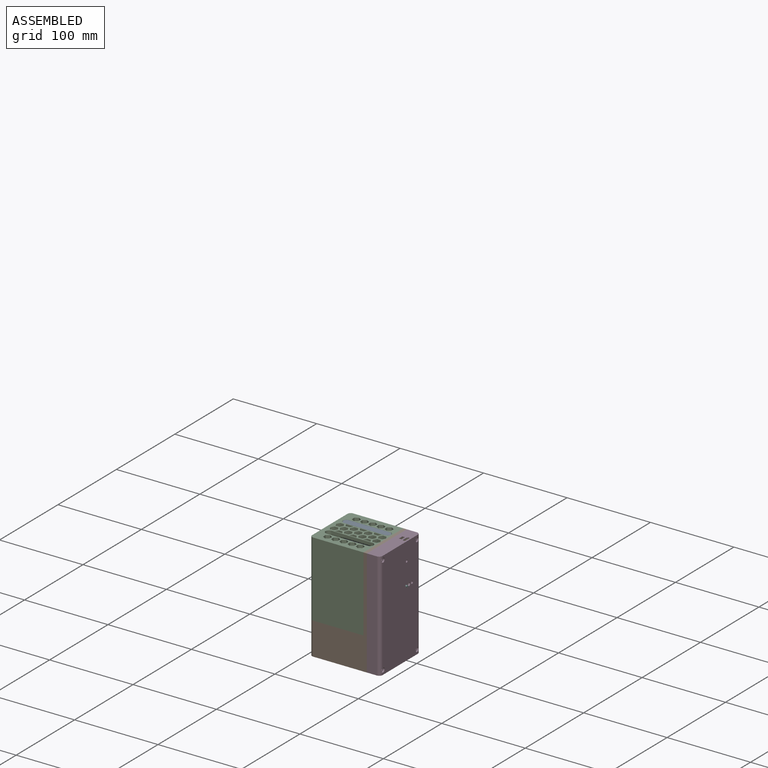
[diagram: assembled view]
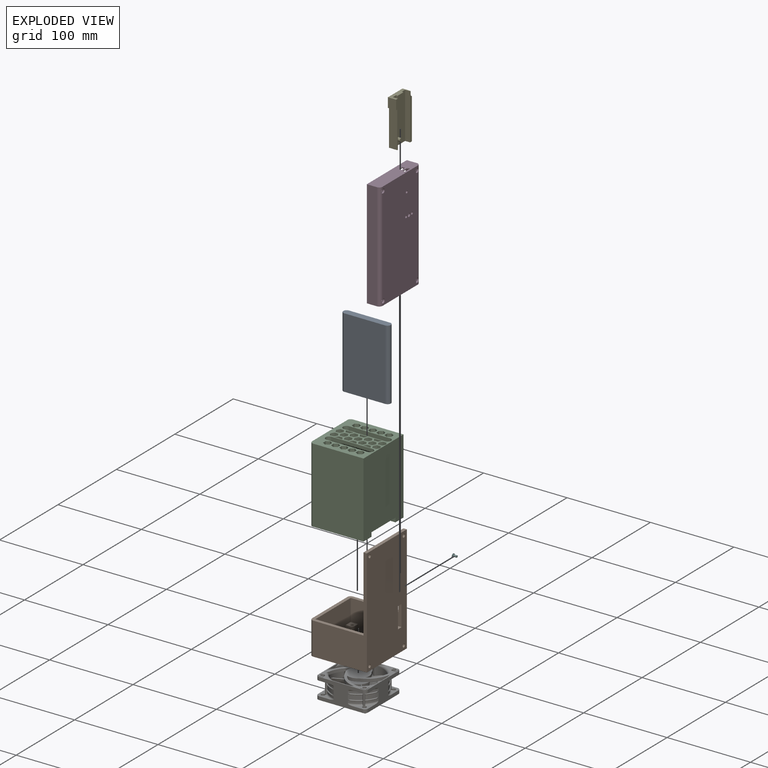
[diagram: exploded view]
GUIDED TOUR — FREECAD ASSEMBLY "ssd-chiller"

This assembly has 7 components, labeled P0..P6 below (a component is one placed body or linked part; the same part can appear more than once), held together by 0 modeled joints plus 9 derived contact edges. A joint is a constraint between two components; its type names the relative motion it leaves free:
  CONTACT — a derived adjacency edge — the two components touch in the source model (clearance under 2% of the assembly's diagonal); it is measured from the geometry, not a modeled constraint.
Axis/direction vectors are unit vectors and 'through' points are millimeter coordinates, both in the assembly's world frame.

MATES
  1. CONTACT "contact_0_2": P0 <-> P2, contact direction (0.000, 0.000, -1.000) through (-26.09, 18.78, 90.00) mm (derived from contact, not a modeled constraint)
  2. CONTACT "contact_1_2": P1 <-> P2, contact direction (-1.000, 0.000, 0.000) through (-34.20, 30.20, 0.00) mm (derived from contact, not a modeled constraint)
  3. CONTACT "contact_1_3": P1 <-> P3, contact direction (0.669, 0.187, 0.719) through (34.20, 34.20, -39.00) mm (derived from contact, not a modeled constraint)
  4. CONTACT "contact_1_4": P1 <-> P4, contact direction (1.000, 0.000, 0.000) through (34.20, 27.00, 85.00) mm (derived from contact, not a modeled constraint)
  5. CONTACT "contact_1_6": P1 <-> P6, contact direction (-0.742, 0.113, 0.661) through (-23.76, -21.54, -25.75) mm (derived from contact, not a modeled constraint)
  6. CONTACT "contact_2_6": P2 <-> P6, contact direction (0.000, 0.000, -1.000) through (-23.18, -26.86, 0.00) mm (derived from contact, not a modeled constraint)
  7. CONTACT "contact_3_4": P3 <-> P4, contact direction (0.000, 0.000, 1.000) through (34.20, 26.80, 85.00) mm (derived from contact, not a modeled constraint)
  8. CONTACT "contact_3_5": P3 <-> P5, contact direction (0.669, 0.187, 0.719) through (48.00, 9.80, 40.79) mm (derived from contact, not a modeled constraint)
  9. CONTACT "contact_4_5": P4 <-> P5, contact direction (1.000, 0.000, 0.000) through (45.50, 10.25, 44.10) mm (derived from contact, not a modeled constraint)

ASSEMBLY ORDER
  1. P1 — the base component [order heuristic]
  2. P2 — core [order heuristic]
  3. P0 — core [order heuristic]
  4. P3 [order verified]
  5. P4 [order verified]
  6. P6 — core [order heuristic]
  7. P5 [order verified]
Order-tag legend:
  [order verified] — this step's position reverses a verified removal order: the component was checked to insert without passing through the ones already placed.
  [order heuristic] — the first 4 components form the assembly's core: parts whose collision-free extraction could not be verified, listed in mate-graph order.

Of the 7 components, 5 carry a construction recipe — the FreeCAD feature program (sketches with constraints, then the solid features that consume them) that regenerates the part from scratch, quoted from this document or from the linked companion document it references; the rest are supplied as boundary geometry only. The tour below walks the components in assembly order: each is shown spotlighted twice — in the assembled view, then in the exploded view, where a leader line traces a displaced component back to its assembled socket (components that stay in place when exploded have no leader line; saturated green if recipe-attached, orange if geometry-only; every other component desaturated gray) — followed by its recipe or geometry summary and the mates that hold it.
NOTE — this tour is split across 2 documents so each fits a 32k-token context. This is document 1: the component sections continue in the remaining 1 document, each repeating the header above.
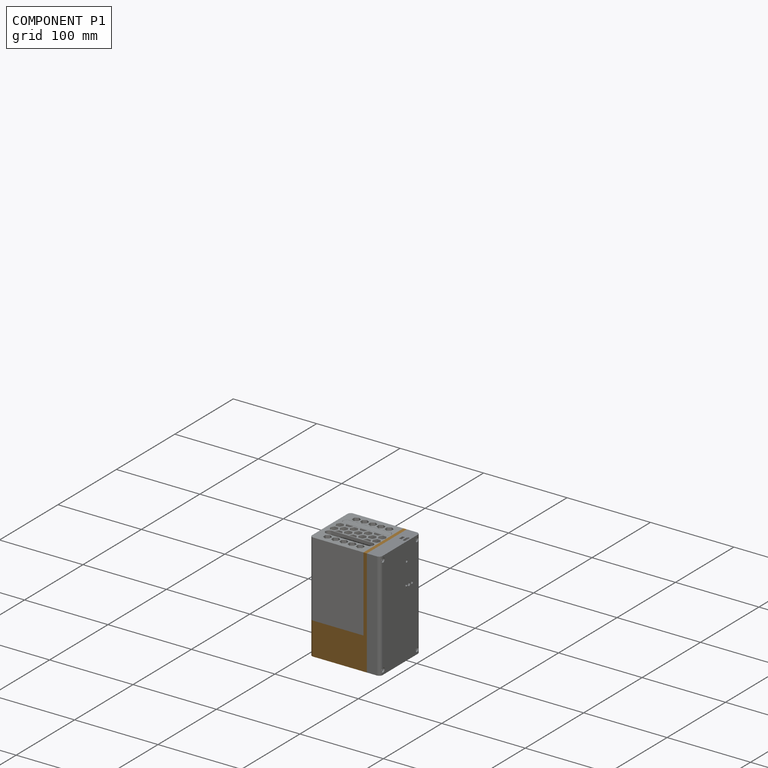
[diagram: component P1 — assembled]
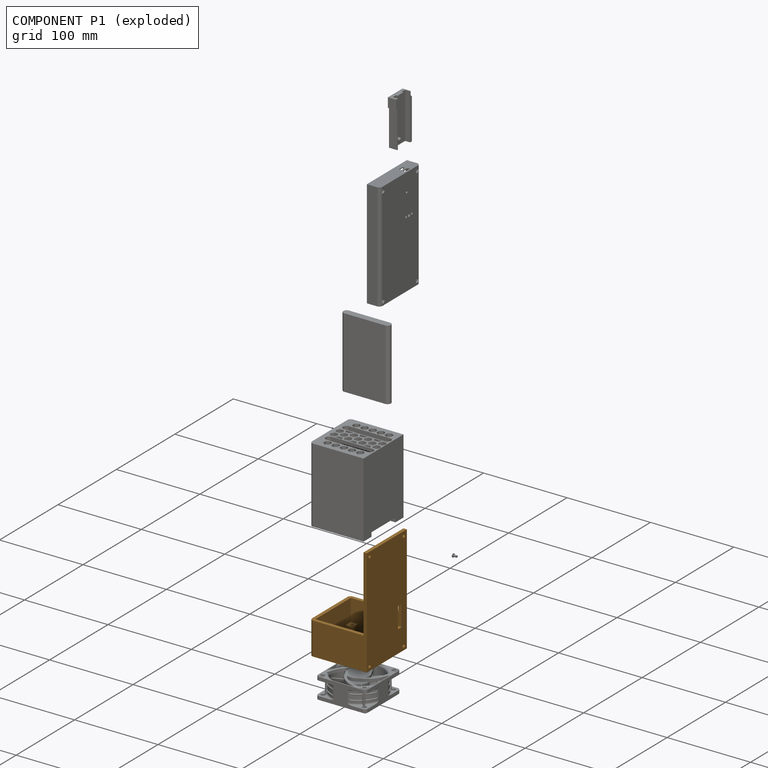
[diagram: component P1 — exploded]
COMPONENT P1 — geometry summary ("Base"; its construction recipe is too large to include in this document):
  bounding box: 129.0 x 68.4 x 68.4 mm
  tessellated surface: 7,976 triangles
  volume: 72354 mm^3 (12% of its bounding box)
Held by: resting contact with P2 (derived edge); resting contact with P3 (derived edge); resting contact with P4 (derived edge); resting contact with P6 (derived edge).
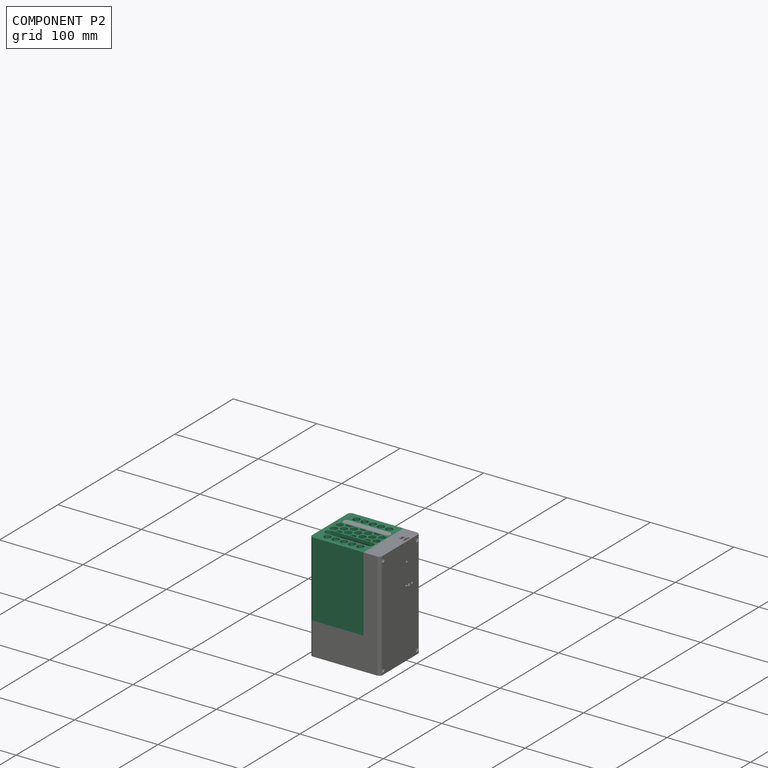
[diagram: component P2 — assembled]
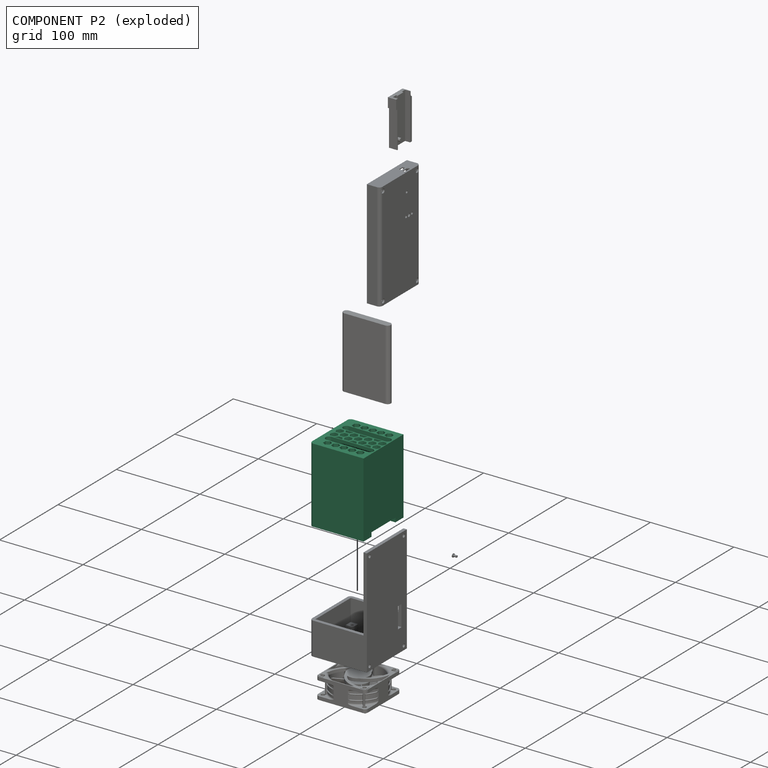
[diagram: component P2 — exploded]
COMPONENT P2 — recipe-attached ("Holder", modeled in this document).
Held by: resting contact with P0 (derived edge); resting contact with P1 (derived edge); resting contact with P6 (derived edge).
Construction recipe (the document's own serialized feature program — sketch geometry with constraints, then the solid features built on it; lengths are millimeters unless a unit is written):

FEATURE [Sketcher::SketchObject] Sketch010
  ArcFitTolerance = 1e-06
  AttachmentSupport = -> [XY_Plane006]
  FullyConstrained = true
  MakeInternals = false
  MapMode = 5
  expr: Constraints[10] = (<<Params>>.fan_dimension + 2 * (<<Params>>.wall_thickness + <<Params>>.wall_margin)) / 2
  expr: Constraints[11] = (<<Params>>.fan_dimension + 2 * (<<Params>>.wall_thickness + <<Params>>.wall_margin)) / 2
  expr: Constraints[8] = <<Params>>.fan_dimension + <<Params>>.wall_thickness + 2 * <<Params>>.wall_margin
  expr: Constraints[9] = <<Params>>.fan_dimension + 2 * (<<Params>>.wall_thickness + <<Params>>.wall_margin)
  sketch-geometry (4):
    g0: LineSegment StartX=-34.2 StartY=34.2 StartZ=0 EndX=-34.2 EndY=-34.2 EndZ=0
    g1: LineSegment StartX=-34.2 StartY=-34.2 StartZ=0 EndX=30.2 EndY=-34.2 EndZ=0
    g2: LineSegment StartX=30.2 StartY=-34.2 StartZ=0 EndX=30.2 EndY=34.2 EndZ=0
    g3: LineSegment StartX=30.2 StartY=34.2 StartZ=0 EndX=-34.2 EndY=34.2 EndZ=0
  constraints (12):
    c: Coincident(g0,g1)
    c: Coincident(g1,g2)
    c: Coincident(g2,g3)
    c: Coincident(g3,g0)
    c: Vertical(g0)
    c: Vertical(g2)
    c: Horizontal(g1)
    c: Horizontal(g3)
    c: DistanceX(g3,g3) = 64.4
    c: DistanceY(g0,g0) = 68.4
    c: DistanceY(g-1,g0) = 34.2
    c: DistanceX(g0,g-1) = 34.2
FEATURE [PartDesign::Pad] Pad003  label="HolderVolume"
  Direction = (0,0,1)
  Length = 90
  Length2 = 10
  Profile = -> Sketch010
  ReferenceAxis = -> Sketch010 [N_Axis]
  Suppressed = false
  Type = 0
  expr: Length = <<Params>>.holder_height
FEATURE [PartDesign::Fillet] Fillet001
  Base = -> Pad003 [Edge2,Edge1]
  BaseFeature = -> Pad003
  Radius = 4
  SupportTransform = false
  Suppressed = false
  UseAllEdges = false
  expr: Radius = <<Params>>.wall_thickness
FEATURE [Sketcher::SketchObject] Sketch011
  ArcFitTolerance = 1e-06
  AttacherType = Attacher::AttachEngine3D
  AttachmentSupport = -> [Fillet001]
  ExternalGeometry = -> [Fillet001]
  FullyConstrained = true
  MakeInternals = false
  MapMode = 5
  Placement = pos=(0,0,0) rot=(1,0,0;3.14159rad)
  expr: Constraints[28] = <<Params>>.holder_insert_diameter / 2 + 2 mm
  expr: Constraints[29] = <<Params>>.holder_insert_diameter / 2 + 2 mm
  expr: Constraints[30] = <<Params>>.holder_insert_diameter / 2 + 2 mm
  expr: Constraints[31] = <<Params>>.holder_insert_diameter / 2 + 2 mm
  expr: Constraints[32] = <<Params>>.fan_mount_dimension / 2
  expr: Constraints[33] = <<Params>>.fan_mount_dimension / 2
  expr: Constraints[34] = <<Params>>.fan_mount_dimension / 2
  expr: Constraints[35] = <<Params>>.fan_mount_dimension / 2
  expr: Constraints[46] = <<Params>>.wall_thickness
  expr: Constraints[47] = <<Params>>.wall_thickness
  expr: Constraints[48] = <<Params>>.wall_thickness
  sketch-geometry (16):
    g0: LineSegment StartX=-20.5 StartY=-30.2 StartZ=0 EndX=20.5 EndY=-30.2 EndZ=0
    g1: LineSegment StartX=25 StartY=20.5 StartZ=0 EndX=30.2 EndY=20.5 EndZ=0
    g2: LineSegment StartX=30.2 StartY=20.5 StartZ=0 EndX=30.2 EndY=-20.5 EndZ=0
    g3: LineSegment StartX=30.2 StartY=-20.5 StartZ=0 EndX=25 EndY=-20.5 EndZ=0
    g4: LineSegment StartX=20.5 StartY=30.2 StartZ=0 EndX=-20.5 EndY=30.2 EndZ=0
    g5: LineSegment StartX=-25 StartY=-20.5 StartZ=0 EndX=-30.2 EndY=-20.5 EndZ=0
    g6: LineSegment StartX=-30.2 StartY=-20.5 StartZ=0 EndX=-30.2 EndY=20.5 EndZ=0
    g7: LineSegment StartX=-30.2 StartY=20.5 StartZ=0 EndX=-25 EndY=20.5 EndZ=0
    g8: ArcOfCircle CenterX=-25 CenterY=25 CenterZ=0 NormalX=0 NormalY=0 NormalZ=1 AngleXU=0 Radius=4.5 StartAngle=4.71239 EndAngle=6.28319
    g9: ArcOfCircle CenterX=25 CenterY=25 CenterZ=0 NormalX=0 NormalY=0 NormalZ=1 AngleXU=0 Radius=4.5 StartAngle=3.14159 EndAngle=4.71239
    g10: ArcOfCircle CenterX=25 CenterY=-25 CenterZ=0 NormalX=0 NormalY=0 NormalZ=1 AngleXU=0 Radius=4.5 StartAngle=1.5708 EndAngle=3.14159
    g11: ArcOfCircle CenterX=-25 CenterY=-25 CenterZ=0 NormalX=0 NormalY=0 NormalZ=1 AngleXU=0 Radius=4.5 StartAngle=0 EndAngle=1.5708
    g12: LineSegment StartX=-20.5 StartY=-25 StartZ=0 EndX=-20.5 EndY=-30.2 EndZ=0
    g13: LineSegment StartX=-20.5 StartY=25 StartZ=0 EndX=-20.5 EndY=30.2 EndZ=0
    g14: LineSegment StartX=20.5 StartY=30.2 StartZ=0 EndX=20.5 EndY=25 EndZ=0
    g15: LineSegment StartX=20.5 StartY=-30.2 StartZ=0 EndX=20.5 EndY=-25 EndZ=0
  constraints (49):
    c: Horizontal(g0)
    c: Horizontal(g1)
    c: Coincident(g2,g1)
    c: Vertical(g2)
    c: Coincident(g3,g2)
    c: Horizontal(g3)
    c: Horizontal(g4)
    c: Horizontal(g5)
    c: Coincident(g6,g5)
    c: Vertical(g6)
    c: Coincident(g7,g6)
    c: Horizontal(g7)
    c: Horizontal(g8,g9)
    c: Horizontal(g10,g11)
    c: Vertical(g5,g7)
    c: Vertical(g1,g3)
    c: Coincident(g8,g7)
    c: Coincident(g9,g1)
    c: Coincident(g10,g3)
    c: Coincident(g11,g5)
    c: Vertical(g8,g11)
    c: Vertical(g7,g8)
    c: Horizontal(g11,g11)
    c: Horizontal(g10,g10)
    c: Vertical(g3,g10)
    c: Vertical(g10,g9)
    c: Horizontal(g9,g9)
    c: Horizontal(g9,g8)
    c: Radius(g9) = 4.5
    c: Radius(g10) = 4.5
    c: Radius(g11) = 4.5
    c: Radius(g8) = 4.5
    c: DistanceY(g-1,g8) = 25
    c: DistanceX(g8,g-1) = 25
    c: DistanceX(g-1,g9) = 25
    c: DistanceY(g11,g-1) = 25
    c: Tangent(g12,g11) = 1.5708
    c: Coincident(g12,g0)
    c: Tangent(g13,g8) = -1.5708
    c: Coincident(g13,g4)
    c: Coincident(g14,g4)
    c: Coincident(g14,g9)
    c: Vertical(g14)
    c: Coincident(g15,g0)
    c: Tangent(g15,g10) = 1.5708
    c: PointOnObject(g1,g-6)
    c: Distance(g0,g-5) = 4
    c: Distance(g-4,g6) = 4
    c: Distance(g-3,g4) = 4
FEATURE [PartDesign::Pocket] Pocket011  label="HolderAirgap"
  BaseFeature = -> Fillet001
  Direction = (0,0,1)
  Length = 5
  Length2 = 5
  Profile = -> Sketch011
  ReferenceAxis = -> Sketch011 [N_Axis]
  Suppressed = false
  Type = 0
  expr: Length = <<Params>>.holder_airgap
FEATURE [Sketcher::SketchObject] Sketch012
  ArcFitTolerance = 1e-06
  AttacherType = Attacher::AttachEngine3D
  AttachmentSupport = -> [Pocket011]
  FullyConstrained = true
  MakeInternals = false
  MapMode = 5
  Placement = pos=(0,0,0) rot=(1,0,0;3.14159rad)
  expr: Constraints[10] = <<Params>>.fan_mount_dimension / 2
  expr: Constraints[11] = <<Params>>.fan_mount_dimension / 2
  expr: Constraints[4] = <<Params>>.holder_insert_diameter
  expr: Constraints[5] = <<Params>>.holder_insert_diameter
  expr: Constraints[6] = <<Params>>.holder_insert_diameter
  expr: Constraints[7] = <<Params>>.holder_insert_diameter
  expr: Constraints[8] = <<Params>>.fan_mount_dimension / 2
  expr: Constraints[9] = <<Params>>.fan_mount_dimension / 2
  sketch-geometry (4):
    g0: Circle CenterX=-25 CenterY=25 CenterZ=0 NormalX=0 NormalY=0 NormalZ=1 AngleXU=0 Radius=2.5
    g1: Circle CenterX=-25 CenterY=-25 CenterZ=0 NormalX=0 NormalY=0 NormalZ=1 AngleXU=0 Radius=2.5
    g2: Circle CenterX=25 CenterY=-25 CenterZ=0 NormalX=0 NormalY=0 NormalZ=1 AngleXU=0 Radius=2.5
    g3: Circle CenterX=25 CenterY=25 CenterZ=0 NormalX=0 NormalY=0 NormalZ=1 AngleXU=0 Radius=2.5
  constraints (12):
    c: Horizontal(g3,g0)
    c: Horizontal(g1,g2)
    c: Vertical(g2,g3)
    c: Vertical(g0,g1)
    c: Diameter(g2) = 5
    c: Diameter(g1) = 5
    c: Diameter(g3) = 5
    c: Diameter(g0) = 5
    c: DistanceX(g0,g-1) = 25
    c: DistanceY(g-1,g0) = 25
    c: DistanceY(g1,g-1) = 25
    c: DistanceX(g-1,g3) = 25
FEATURE [PartDesign::Pocket] Pocket012  label="HolderInsertHoles"
  BaseFeature = -> Pocket011
  Direction = (0,0,1)
  Length = 4
  Length2 = 5
  Profile = -> Sketch012
  ReferenceAxis = -> Sketch012 [N_Axis]
  Suppressed = false
  Type = 0
FEATURE [Sketcher::SketchObject] Sketch013
  ArcFitTolerance = 1e-06
  AttacherType = Attacher::AttachEngine3D
  AttachmentSupport = -> [Pocket012]
  FullyConstrained = true
  MakeInternals = false
  MapMode = 5
  Placement = pos=(0,0,4) rot=(1,0,0;3.14159rad)
  expr: Constraints[10] = <<Params>>.fan_mount_dimension / 2
  expr: Constraints[11] = <<Params>>.fan_mount_dimension / 2
  expr: Constraints[4] = <<Params>>.fan_bolt_diameter
  expr: Constraints[5] = <<Params>>.fan_bolt_diameter
  expr: Constraints[6] = <<Params>>.fan_bolt_diameter
  expr: Constraints[7] = <<Params>>.fan_bolt_diameter
  expr: Constraints[8] = <<Params>>.fan_mount_dimension / 2
  expr: Constraints[9] = <<Params>>.fan_mount_dimension / 2
  sketch-geometry (4):
    g0: Circle CenterX=-25 CenterY=25 CenterZ=0 NormalX=0 NormalY=0 NormalZ=1 AngleXU=0 Radius=1.6
    g1: Circle CenterX=-25 CenterY=-25 CenterZ=0 NormalX=0 NormalY=0 NormalZ=1 AngleXU=0 Radius=1.6
    g2: Circle CenterX=25 CenterY=-25 CenterZ=0 NormalX=0 NormalY=0 NormalZ=1 AngleXU=0 Radius=1.6
    g3: Circle CenterX=25 CenterY=25 CenterZ=0 NormalX=0 NormalY=0 NormalZ=1 AngleXU=0 Radius=1.6
  constraints (12):
    c: Horizontal(g3,g0)
    c: Horizontal(g1,g2)
    c: Vertical(g2,g3)
    c: Vertical(g0,g1)
    c: Diameter(g2) = 3.2
    c: Diameter(g1) = 3.2
    c: Diameter(g3) = 3.2
    c: Diameter(g0) = 3.2
    c: DistanceX(g0,g-1) = 25
    c: DistanceY(g-1,g0) = 25
    c: DistanceY(g1,g-1) = 25
    c: DistanceX(g-1,g3) = 25
FEATURE [PartDesign::Pocket] Pocket013  label="HolderInsertOverflow"
  BaseFeature = -> Pocket012
  Direction = (0,0,1)
  Length = 2
  Length2 = 5
  Profile = -> Sketch013
  ReferenceAxis = -> Sketch013 [N_Axis]
  Suppressed = false
  Type = 0
FEATURE [Sketcher::SketchObject] Sketch014
  ArcFitTolerance = 1e-06
  AttacherType = Attacher::AttachEngine3D
  AttachmentSupport = -> [Pocket013]
  ExternalGeometry = -> [Pocket013]
  FullyConstrained = true
  MakeInternals = false
  MapMode = 5
  Placement = pos=(0,0,5) rot=(1,0,0;3.14159rad)
  expr: Constraints[14] = <<Params>>.holder_insert_diameter / 2 + 2 mm
  expr: Constraints[15] = <<Params>>.holder_insert_diameter / 2 + 2 mm
  expr: Constraints[16] = <<Params>>.holder_insert_diameter / 2 + 2 mm
  expr: Constraints[17] = <<Params>>.holder_insert_diameter / 2 + 2 mm
  expr: Constraints[18] = <<Params>>.fan_mount_dimension / 2
  expr: Constraints[19] = <<Params>>.fan_mount_dimension / 2
  expr: Constraints[20] = <<Params>>.fan_mount_dimension / 2
  expr: Constraints[21] = <<Params>>.fan_mount_dimension / 2
  expr: Constraints[32] = <<Params>>.ssd_width / 2 - <<Params>>.ssd_radius
  expr: Constraints[33] = <<Params>>.ssd_width / 2 - <<Params>>.ssd_radius
  expr: Constraints[34] = <<Params>>.ssd_radius + 0.2 mm
  expr: Constraints[35] = <<Params>>.holder_offset
  expr: Constraints[39] = <<Params>>.holder_offset
  expr: Constraints[40] = <<Params>>.ssd_radius + 0.2 mm
  expr: Constraints[83] = <<Params>>.ssd_radius / 2
  expr: Constraints[84] = <<Params>>.ssd_radius / 2
  expr: Constraints[88] = <<Params>>.fan_hole_spacing
  sketch-geometry (28):
    g0: LineSegment StartX=-20.5 StartY=-30.2 StartZ=0 EndX=20.5 EndY=-30.2 EndZ=0
    g1: LineSegment StartX=28.2 StartY=8.8 StartZ=0 EndX=28.2 EndY=-8.8 EndZ=0
    g2: LineSegment StartX=20.5 StartY=30.2 StartZ=0 EndX=-20.5 EndY=30.2 EndZ=0
    g3: LineSegment StartX=-30.2 StartY=-8.8 StartZ=0 EndX=-30.2 EndY=8.8 EndZ=0
    g4: LineSegment StartX=-30.2 StartY=8.8 StartZ=0 EndX=-24.5 EndY=8.8 EndZ=0
    g5: ArcOfCircle CenterX=-25 CenterY=25 CenterZ=0 NormalX=0 NormalY=0 NormalZ=1 AngleXU=0 Radius=4.5 StartAngle=4.82373 EndAngle=6.28319
    g6: ArcOfCircle CenterX=25 CenterY=25 CenterZ=0 NormalX=0 NormalY=0 NormalZ=1 AngleXU=0 Radius=4.5 StartAngle=3.14159 EndAngle=4.60105
    g7: ArcOfCircle CenterX=25 CenterY=-25 CenterZ=0 NormalX=0 NormalY=0 NormalZ=1 AngleXU=0 Radius=4.5 StartAngle=1.68214 EndAngle=3.14159
    g8: ArcOfCircle CenterX=-25 CenterY=-25 CenterZ=0 NormalX=0 NormalY=0 NormalZ=1 AngleXU=0 Radius=4.5 StartAngle=0 EndAngle=1.45946
    g9: LineSegment StartX=-20.5 StartY=-25 StartZ=0 EndX=-20.5 EndY=-30.2 EndZ=0
    g10: LineSegment StartX=-20.5 StartY=25 StartZ=0 EndX=-20.5 EndY=30.2 EndZ=0
    g11: LineSegment StartX=20.5 StartY=30.2 StartZ=0 EndX=20.5 EndY=25 EndZ=0
    g12: LineSegment StartX=20.5 StartY=-30.2 StartZ=0 EndX=20.5 EndY=-25 EndZ=0
    g13: ArcOfCircle CenterX=-24.5 CenterY=15 CenterZ=0 NormalX=0 NormalY=0 NormalZ=1 AngleXU=0 Radius=4.2 StartAngle=1.5708 EndAngle=4.71239
    g14: ArcOfCircle CenterX=24.5 CenterY=15 CenterZ=0 NormalX=0 NormalY=0 NormalZ=1 AngleXU=0 Radius=4.2 StartAngle=4.71239 EndAngle=7.85398
    g15: ArcOfCircle CenterX=-24.5 CenterY=-15 CenterZ=0 NormalX=0 NormalY=0 NormalZ=1 AngleXU=0 Radius=4.2 StartAngle=1.5708 EndAngle=4.71239
    g16: ArcOfCircle CenterX=24.5 CenterY=-15 CenterZ=0 NormalX=0 NormalY=0 NormalZ=1 AngleXU=0 Radius=4.2 StartAngle=4.71239 EndAngle=7.85398
    g17: LineSegment StartX=-24.5 StartY=19.2 StartZ=0 EndX=-24.5 EndY=20.5279 EndZ=0
    g18: LineSegment StartX=-24.5 StartY=8.8 StartZ=0 EndX=-24.5 EndY=10.8 EndZ=0
    g19: LineSegment StartX=24.5 StartY=19.2 StartZ=0 EndX=24.5 EndY=20.5279 EndZ=0
    g20: LineSegment StartX=24.5 StartY=10.8 StartZ=0 EndX=24.5 EndY=8.8 EndZ=0
    g21: LineSegment StartX=24.5 StartY=-10.8 StartZ=0 EndX=24.5 EndY=-8.8 EndZ=0
    g22: LineSegment StartX=24.5 StartY=-8.8 StartZ=0 EndX=28.2 EndY=-8.8 EndZ=0
    g23: LineSegment StartX=24.5 StartY=8.8 StartZ=0 EndX=28.2 EndY=8.8 EndZ=0
    g24: LineSegment StartX=-24.5 StartY=-20.5279 StartZ=0 EndX=-24.5 EndY=-19.2 EndZ=0
    g25: LineSegment StartX=24.5 StartY=-20.5279 StartZ=0 EndX=24.5 EndY=-19.2 EndZ=0
    g26: LineSegment StartX=-24.5 StartY=-10.8 StartZ=0 EndX=-24.5 EndY=-8.8 EndZ=0
    g27: LineSegment StartX=-24.5 StartY=-8.8 StartZ=0 EndX=-30.2 EndY=-8.8 EndZ=0
  constraints (89):
    c: Horizontal(g0)
    c: Vertical(g1)
    c: Horizontal(g2)
    c: Vertical(g3)
    c: Coincident(g4,g3)
    c: Horizontal(g4)
    c: Horizontal(g5,g6)
    c: Horizontal(g7,g8)
    c: Vertical(g5,g8)
    c: Horizontal(g8,g8)
    c: Horizontal(g7,g7)
    c: Vertical(g7,g6)
    c: Horizontal(g6,g6)
    c: Horizontal(g6,g5)
    c: Radius(g6) = 4.5
    c: Radius(g7) = 4.5
    c: Radius(g8) = 4.5
    c: Radius(g5) = 4.5
    c: DistanceY(g-1,g5) = 25
    c: DistanceX(g5,g-1) = 25
    c: DistanceX(g-1,g6) = 25
    c: DistanceY(g8,g-1) = 25
    c: Tangent(g9,g8) = 1.5708
    c: Coincident(g9,g0)
    c: Tangent(g10,g5) = -1.5708
    c: Coincident(g10,g2)
    c: Coincident(g11,g2)
    c: Coincident(g11,g6)
    c: Vertical(g11)
    c: Coincident(g12,g0)
    c: Tangent(g12,g7) = 1.5708
    c: Equal(g13,g14)
    c: DistanceX(g13,g-1) = 24.5
    c: DistanceX(g-1,g14) = 24.5
    c: Distance(g14,g14) = 4.2
    c: DistanceY(g-1,g14) = 15
    c: Equal(g15,g16)
    c: Vertical(g16,g14)
    c: Vertical(g15,g13)
    c: DistanceY(g16,g-1) = 15
    c: Distance(g16,g16) = 4.2
    c: Vertical(g8,g15)
    c: Vertical(g7,g16)
    c: Vertical(g5,g13)
    c: Coincident(g17,g13)
    c: Coincident(g17,g5)
    c: Coincident(g18,g4)
    c: Coincident(g18,g13)
    c: Vertical(g18)
    c: Vertical(g13,g13)
    c: Horizontal(g13,g14)
    c: Vertical(g13,g13)
    c: Vertical(g14,g6)
    c: Coincident(g19,g14)
    c: Coincident(g19,g6)
    c: Vertical(g6,g14)
    c: Vertical(g14,g14)
    c: Coincident(g20,g14)
    c: Vertical(g20)
    c: Horizontal(g20,g4)
    c: Horizontal(g16,g15)
    c: Vertical(g15,g15)
    c: Vertical(g15,g15)
    c: Vertical(g16,g16)
    c: Vertical(g16,g16)
    c: Coincident(g21,g16)
    c: Vertical(g21)
    c: Coincident(g22,g21)
    c: Coincident(g22,g1)
    c: Horizontal(g22)
    c: Coincident(g23,g20)
    c: Coincident(g23,g1)
    c: Horizontal(g23)
    c: Coincident(g24,g8)
    c: Coincident(g24,g15)
    c: Coincident(g25,g7)
    c: Coincident(g25,g16)
    c: Coincident(g26,g15)
    c: Vertical(g26)
    c: Coincident(g27,g3)
    c: Horizontal(g27)
    c: Coincident(g26,g27)
    c: Horizontal(g26,g21)
    c: Distance(g4,g13) = 2
    c: Distance(g26,g15) = 2
    c: PointOnObject(g3,g-6)
    c: PointOnObject(g0,g-5)
    c: PointOnObject(g2,g-3)
    c: Distance(g-4,g1) = 2
FEATURE [PartDesign::Pocket] Pocket014  label="AirChannels"
  BaseFeature = -> Pocket013
  Direction = (0,0,1)
  Length = 81
  Length2 = 5
  Profile = -> Sketch014
  ReferenceAxis = -> Sketch014 [N_Axis]
  Suppressed = false
  Type = 0
  expr: Length = <<Params>>.holder_height - <<Params>>.holder_airgap - <<Params>>.bottom_thickness
FEATURE [Sketcher::SketchObject] Sketch015
  ArcFitTolerance = 1e-06
  AttachmentSupport = -> [Pocket014]
  ExternalGeometry = -> [Pocket014]
  FullyConstrained = true
  MakeInternals = false
  MapMode = 5
  Placement = pos=(0,0,90) rot=(0,0,1;0rad)
  expr: Constraints[14] = <<Params>>.ssd_radius + 0.2 mm
  expr: Constraints[15] = <<Params>>.ssd_radius + 0.2 mm
  expr: Constraints[16] = <<Params>>.ssd_width / 2 - <<Params>>.ssd_radius
  expr: Constraints[17] = <<Params>>.ssd_width / 2 - <<Params>>.ssd_radius
  expr: Constraints[18] = <<Params>>.holder_offset
  expr: Constraints[192] = <<Params>>.fan_hole_radius
  expr: Constraints[193] = <<Params>>.fan_hole_radius
  expr: Constraints[194] = <<Params>>.fan_hole_radius
  expr: Constraints[195] = <<Params>>.fan_hole_radius
  expr: Constraints[196] = <<Params>>.fan_hole_radius
  expr: Constraints[197] = <<Params>>.fan_hole_radius
  expr: Constraints[198] = <<Params>>.fan_hole_spacing
  expr: Constraints[199] = <<Params>>.fan_hole_spacing
  expr: Constraints[19] = <<Params>>.holder_offset
  expr: Constraints[200] = <<Params>>.fan_hole_spacing
  expr: Constraints[201] = <<Params>>.fan_hole_spacing
  expr: Constraints[202] = <<Params>>.fan_hole_spacing
  expr: Constraints[204] = <<Params>>.fan_hole_spacing
  expr: Constraints[205] = <<Params>>.fan_hole_spacing
  expr: Constraints[206] = <<Params>>.fan_hole_spacing
  expr: Constraints[207] = <<Params>>.fan_hole_spacing
  expr: Constraints[242] = <<Params>>.fan_hole_radius
  expr: Constraints[243] = <<Params>>.fan_hole_radius
  expr: Constraints[247] = <<Params>>.fan_hole_spacing
  expr: Constraints[248] = <<Params>>.fan_hole_spacing
  expr: Constraints[249] = <<Params>>.fan_hole_spacing
  expr: Constraints[296] = <<Params>>.fan_hole_radius
  expr: Constraints[297] = <<Params>>.fan_hole_radius
  expr: Constraints[298] = <<Params>>.fan_hole_radius
  expr: Constraints[299] = <<Params>>.fan_hole_radius
  expr: Constraints[300] = <<Params>>.fan_hole_radius
  expr: Constraints[308] = <<Params>>.fan_hole_spacing
  expr: Constraints[309] = <<Params>>.fan_hole_spacing
  expr: Constraints[310] = <<Params>>.fan_hole_radius
  expr: Constraints[311] = <<Params>>.fan_hole_spacing
  expr: Constraints[313] = <<Params>>.fan_hole_spacing
  expr: Constraints[314] = <<Params>>.fan_hole_spacing
  expr: Constraints[315] = <<Params>>.fan_hole_spacing
  expr: Constraints[359] = <<Params>>.fan_hole_radius
  expr: Constraints[360] = <<Params>>.wall_thickness + <<Params>>.fan_hole_spacing / 2
  expr: Constraints[39] = <<Params>>.fan_hole_radius
  expr: Constraints[401] = <<Params>>.fan_hole_spacing
  expr: Constraints[402] = <<Params>>.fan_hole_spacing
  expr: Constraints[443] = <<Params>>.fan_hole_spacing
  expr: Constraints[444] = <<Params>>.fan_hole_spacing
  expr: Constraints[499] = <<Params>>.fan_hole_spacing
  expr: Constraints[500] = <<Params>>.fan_hole_spacing
  expr: Constraints[537] = <<Params>>.fan_hole_spacing
  expr: Constraints[538] = <<Params>>.fan_hole_spacing
  expr: Constraints[543] = <<Params>>.wall_thickness + <<Params>>.fan_hole_spacing / 2
  expr: Constraints[76] = <<Params>>.fan_hole_radius
  expr: Constraints[77] = <<Params>>.fan_hole_radius
  expr: Constraints[78] = <<Params>>.fan_hole_spacing
  expr: Constraints[79] = <<Params>>.fan_hole_spacing
  sketch-geometry (185):
    g0: ArcOfCircle CenterX=-24.5 CenterY=15 CenterZ=0 NormalX=0 NormalY=0 NormalZ=1 AngleXU=0 Radius=4.2 StartAngle=1.5708 EndAngle=4.71239
    g1: ArcOfCircle CenterX=24.5 CenterY=15 CenterZ=0 NormalX=0 NormalY=0 NormalZ=1 AngleXU=0 Radius=4.2 StartAngle=4.71239 EndAngle=7.85398
    g2: LineSegment StartX=-24.5 StartY=19.2 StartZ=0 EndX=24.5 EndY=19.2 EndZ=0
    g3: LineSegment StartX=-24.5 StartY=10.8 StartZ=0 EndX=24.5 EndY=10.8 EndZ=0
    g4: ArcOfCircle CenterX=-24.5 CenterY=-15 CenterZ=0 NormalX=0 NormalY=0 NormalZ=1 AngleXU=0 Radius=4.2 StartAngle=1.5708 EndAngle=4.71239
    g5: ArcOfCircle CenterX=24.5 CenterY=-15 CenterZ=0 NormalX=0 NormalY=0 NormalZ=1 AngleXU=0 Radius=4.2 StartAngle=4.71239 EndAngle=7.85398
    g6: LineSegment StartX=-24.5 StartY=-10.8 StartZ=0 EndX=24.5 EndY=-10.8 EndZ=0
    g7: LineSegment StartX=-24.5 StartY=-19.2 StartZ=0 EndX=24.5 EndY=-19.2 EndZ=0
    g8: LineSegment StartX=2.25 StartY=-3.89711 StartZ=0 EndX=4.5 EndY=0 EndZ=0
    g9: LineSegment StartX=4.5 StartY=0 StartZ=0 EndX=2.25 EndY=3.89711 EndZ=0
    g10: LineSegment StartX=2.25 StartY=3.89711 StartZ=0 EndX=-2.25 EndY=3.89711 EndZ=0
    g11: LineSegment StartX=-2.25 StartY=3.89711 StartZ=0 EndX=-4.5 EndY=-9e-16 EndZ=0
    g12: LineSegment StartX=-4.5 StartY=-9e-16 StartZ=0 EndX=-2.25 EndY=-3.89711 EndZ=0
    g13: LineSegment StartX=-2.25 StartY=-3.89711 StartZ=0 EndX=2.25 EndY=-3.89711 EndZ=0
    g14: Circle [constr] CenterX=0 CenterY=0 CenterZ=0 NormalX=0 NormalY=0 NormalZ=1 AngleXU=0 Radius=4.5
    g15: LineSegment StartX=10.7321 StartY=-8.79423 StartZ=0 EndX=12.9821 EndY=-4.89711 EndZ=0
    g16: LineSegment StartX=12.9821 StartY=-4.89711 StartZ=0 EndX=10.7321 EndY=-1 EndZ=0
    g17: LineSegment StartX=10.7321 StartY=-1 StartZ=0 EndX=6.23205 EndY=-1 EndZ=0
    g18: LineSegment StartX=6.23205 StartY=-1 StartZ=0 EndX=3.98205 EndY=-4.89711 EndZ=0
    g19: LineSegment StartX=3.98205 StartY=-4.89711 StartZ=0 EndX=6.23205 EndY=-8.79423 EndZ=0
    g20: LineSegment StartX=6.23205 StartY=-8.79423 StartZ=0 EndX=10.7321 EndY=-8.79423 EndZ=0
    g21: Circle [constr] CenterX=8.48205 CenterY=-4.89711 CenterZ=0 NormalX=0 NormalY=0 NormalZ=1 AngleXU=0 Radius=4.5
    g22: LineSegment StartX=-6.23205 StartY=-8.79423 StartZ=0 EndX=-3.98205 EndY=-4.89711 EndZ=0
    g23: LineSegment StartX=-3.98205 StartY=-4.89711 StartZ=0 EndX=-6.23205 EndY=-1 EndZ=0
    g24: LineSegment StartX=-6.23205 StartY=-1 StartZ=0 EndX=-10.7321 EndY=-1 EndZ=0
    g25: LineSegment StartX=-10.7321 StartY=-1 StartZ=0 EndX=-12.9821 EndY=-4.89711 EndZ=0
    g26: LineSegment StartX=-12.9821 StartY=-4.89711 StartZ=0 EndX=-10.7321 EndY=-8.79423 EndZ=0
    g27: LineSegment StartX=-10.7321 StartY=-8.79423 StartZ=0 EndX=-6.23205 EndY=-8.79423 EndZ=0
    g28: Circle [constr] CenterX=-8.48205 CenterY=-4.89711 CenterZ=0 NormalX=0 NormalY=0 NormalZ=1 AngleXU=0 Radius=4.5
    g29: LineSegment StartX=-6.23205 StartY=1 StartZ=0 EndX=-3.98205 EndY=4.89711 EndZ=0
    g30: LineSegment StartX=-3.98205 StartY=4.89711 StartZ=0 EndX=-6.23205 EndY=8.79423 EndZ=0
    g31: LineSegment StartX=-6.23205 StartY=8.79423 StartZ=0 EndX=-10.7321 EndY=8.79423 EndZ=0
    g32: LineSegment StartX=-10.7321 StartY=8.79423 StartZ=0 EndX=-12.9821 EndY=4.89711 EndZ=0
    g33: LineSegment StartX=-12.9821 StartY=4.89711 StartZ=0 EndX=-10.7321 EndY=1 EndZ=0
    g34: LineSegment StartX=-10.7321 StartY=1 StartZ=0 EndX=-6.23205 EndY=1 EndZ=0
    g35: Circle [constr] CenterX=-8.48205 CenterY=4.89711 CenterZ=0 NormalX=0 NormalY=0 NormalZ=1 AngleXU=0 Radius=4.5
    g36: LineSegment StartX=10.7321 StartY=1 StartZ=0 EndX=12.9821 EndY=4.89711 EndZ=0
    g37: LineSegment StartX=12.9821 StartY=4.89711 StartZ=0 EndX=10.7321 EndY=8.79423 EndZ=0
    g38: LineSegment StartX=10.7321 StartY=8.79423 StartZ=0 EndX=6.23205 EndY=8.79423 EndZ=0
    g39: LineSegment StartX=6.23205 StartY=8.79423 StartZ=0 EndX=3.98205 EndY=4.89711 EndZ=0
    g40: LineSegment StartX=3.98205 StartY=4.89711 StartZ=0 EndX=6.23205 EndY=1 EndZ=0
    g41: LineSegment StartX=6.23205 StartY=1 StartZ=0 EndX=10.7321 EndY=1 EndZ=0
    g42: Circle [constr] CenterX=8.48205 CenterY=4.89711 CenterZ=0 NormalX=0 NormalY=0 NormalZ=1 AngleXU=0 Radius=4.5
    g43: LineSegment StartX=27.6962 StartY=1 StartZ=0 EndX=29.9462 EndY=4.89711 EndZ=0
    g44: LineSegment StartX=29.9462 StartY=4.89711 StartZ=0 EndX=27.6962 EndY=8.79423 EndZ=0
    g45: LineSegment StartX=27.6962 StartY=8.79423 StartZ=0 EndX=23.1962 EndY=8.79423 EndZ=0
    g46: LineSegment StartX=23.1962 StartY=8.79423 StartZ=0 EndX=20.9462 EndY=4.89711 EndZ=0
    g47: LineSegment StartX=20.9462 StartY=4.89711 StartZ=0 EndX=23.1962 EndY=1 EndZ=0
    g48: LineSegment StartX=23.1962 StartY=1 StartZ=0 EndX=27.6962 EndY=1 EndZ=0
    g49: Circle [constr] CenterX=25.4462 CenterY=4.89711 CenterZ=0 NormalX=0 NormalY=0 NormalZ=1 AngleXU=0 Radius=4.5
    g50: LineSegment StartX=27.6962 StartY=-8.79423 StartZ=0 EndX=29.9462 EndY=-4.89711 EndZ=0
    g51: LineSegment StartX=29.9462 StartY=-4.89711 StartZ=0 EndX=27.6962 EndY=-1 EndZ=0
    g52: LineSegment StartX=27.6962 StartY=-1 StartZ=0 EndX=23.1962 EndY=-1 EndZ=0
    g53: LineSegment StartX=23.1962 StartY=-1 StartZ=0 EndX=20.9462 EndY=-4.89711 EndZ=0
    g54: LineSegment StartX=20.9462 StartY=-4.89711 StartZ=0 EndX=23.1962 EndY=-8.79423 EndZ=0
    g55: LineSegment StartX=23.1962 StartY=-8.79423 StartZ=0 EndX=27.6962 EndY=-8.79423 EndZ=0
    g56: Circle [constr] CenterX=25.4462 CenterY=-4.89711 CenterZ=0 NormalX=0 NormalY=0 NormalZ=1 AngleXU=0 Radius=4.5
    g57: LineSegment StartX=-14.7141 StartY=-3.89711 StartZ=0 EndX=-12.4641 EndY=0 EndZ=0
    g58: LineSegment StartX=-12.4641 StartY=0 StartZ=0 EndX=-14.7141 EndY=3.89711 EndZ=0
    g59: LineSegment StartX=-14.7141 StartY=3.89711 StartZ=0 EndX=-19.2141 EndY=3.89711 EndZ=0
    g60: LineSegment StartX=-19.2141 StartY=3.89711 StartZ=0 EndX=-21.4641 EndY=0 EndZ=0
    g61: LineSegment StartX=-21.4641 StartY=0 StartZ=0 EndX=-19.2141 EndY=-3.89711 EndZ=0
    g62: LineSegment StartX=-19.2141 StartY=-3.89711 StartZ=0 EndX=-14.7141 EndY=-3.89711 EndZ=0
    g63: Circle [constr] CenterX=-16.9641 CenterY=0 CenterZ=0 NormalX=0 NormalY=0 NormalZ=1 AngleXU=0 Radius=4.5
    g64: LineSegment StartX=19.2141 StartY=-3.89711 StartZ=0 EndX=21.4641 EndY=-4e-16 EndZ=0
    g65: LineSegment StartX=21.4641 StartY=-4e-16 StartZ=0 EndX=19.2141 EndY=3.89711 EndZ=0
    g66: LineSegment StartX=19.2141 StartY=3.89711 StartZ=0 EndX=14.7141 EndY=3.89711 EndZ=0
    g67: LineSegment StartX=14.7141 StartY=3.89711 StartZ=0 EndX=12.4641 EndY=9e-16 EndZ=0
    g68: LineSegment StartX=12.4641 StartY=9e-16 StartZ=0 EndX=14.7141 EndY=-3.89711 EndZ=0
    g69: LineSegment StartX=14.7141 StartY=-3.89711 StartZ=0 EndX=19.2141 EndY=-3.89711 EndZ=0
    g70: Circle [constr] CenterX=16.9641 CenterY=0 CenterZ=0 NormalX=0 NormalY=0 NormalZ=1 AngleXU=0 Radius=4.5
    g71: LineSegment StartX=-23.1962 StartY=1 StartZ=0 EndX=-20.9462 EndY=4.89711 EndZ=0
    g72: LineSegment StartX=-20.9462 StartY=4.89711 StartZ=0 EndX=-23.1962 EndY=8.79423 EndZ=0
    g73: LineSegment StartX=-23.1962 StartY=8.79423 StartZ=0 EndX=-27.6962 EndY=8.79423 EndZ=0
    g74: LineSegment StartX=-27.6962 StartY=8.79423 StartZ=0 EndX=-29.9462 EndY=4.89711 EndZ=0
    g75: LineSegment StartX=-29.9462 StartY=4.89711 StartZ=0 EndX=-27.6962 EndY=1 EndZ=0
    g76: LineSegment StartX=-27.6962 StartY=1 StartZ=0 EndX=-23.1962 EndY=1 EndZ=0
    g77: Circle [constr] CenterX=-25.4462 CenterY=4.89711 CenterZ=0 NormalX=0 NormalY=0 NormalZ=1 AngleXU=0 Radius=4.5
    g78: LineSegment StartX=-23.1962 StartY=-8.79423 StartZ=0 EndX=-20.9462 EndY=-4.89711 EndZ=0
    g79: LineSegment StartX=-20.9462 StartY=-4.89711 StartZ=0 EndX=-23.1962 EndY=-1 EndZ=0
    g80: LineSegment StartX=-23.1962 StartY=-1 StartZ=0 EndX=-27.6962 EndY=-1 EndZ=0
    g81: LineSegment StartX=-27.6962 StartY=-1 StartZ=0 EndX=-29.9462 EndY=-4.89711 EndZ=0
    g82: LineSegment StartX=-29.9462 StartY=-4.89711 StartZ=0 EndX=-27.6962 EndY=-8.79423 EndZ=0
    g83: LineSegment StartX=-27.6962 StartY=-8.79423 StartZ=0 EndX=-23.1962 EndY=-8.79423 EndZ=0
    g84: Circle [constr] CenterX=-25.4462 CenterY=-4.89711 CenterZ=0 NormalX=0 NormalY=0 NormalZ=1 AngleXU=0 Radius=4.5
    g85: LineSegment StartX=-14.7141 StartY=5.89711 StartZ=0 EndX=-12.4641 EndY=9.79423 EndZ=0
    g86: LineSegment StartX=-21.4641 StartY=9.79423 StartZ=0 EndX=-19.2141 EndY=5.89711 EndZ=0
    g87: LineSegment StartX=-19.2141 StartY=5.89711 StartZ=0 EndX=-14.7141 EndY=5.89711 EndZ=0
    g88: Circle [constr] CenterX=-16.9641 CenterY=9.79423 CenterZ=0 NormalX=0 NormalY=0 NormalZ=1 AngleXU=0 Radius=4.5
    g89: LineSegment StartX=-12.4641 StartY=-9.79423 StartZ=0 EndX=-14.7141 EndY=-5.89711 EndZ=0
    g90: LineSegment StartX=-14.7141 StartY=-5.89711 StartZ=0 EndX=-19.2141 EndY=-5.89711 EndZ=0
    g91: LineSegment StartX=-19.2141 StartY=-5.89711 StartZ=0 EndX=-21.4641 EndY=-9.79423 EndZ=0
    g92: Circle [constr] CenterX=-16.9641 CenterY=-9.79423 CenterZ=0 NormalX=0 NormalY=0 NormalZ=1 AngleXU=0 Radius=4.5
    g93: LineSegment StartX=4.5 StartY=-9.79423 StartZ=0 EndX=2.25 EndY=-5.89711 EndZ=0
    g94: LineSegment StartX=2.25 StartY=-5.89711 StartZ=0 EndX=-2.25 EndY=-5.89711 EndZ=0
    g95: LineSegment StartX=-2.25 StartY=-5.89711 StartZ=0 EndX=-4.5 EndY=-9.79423 EndZ=0
    g96: Circle [constr] CenterX=0 CenterY=-9.79423 CenterZ=0 NormalX=0 NormalY=0 NormalZ=1 AngleXU=0 Radius=4.5
    g97: LineSegment StartX=2.25 StartY=5.89711 StartZ=0 EndX=4.5 EndY=9.79423 EndZ=0
    g98: LineSegment StartX=-4.5 StartY=9.79423 StartZ=0 EndX=-2.25 EndY=5.89711 EndZ=0
    g99: LineSegment StartX=-2.25 StartY=5.89711 StartZ=0 EndX=2.25 EndY=5.89711 EndZ=0
    g100: Circle [constr] CenterX=0 CenterY=9.79423 CenterZ=0 NormalX=0 NormalY=0 NormalZ=1 AngleXU=0 Radius=4.5
    g101: LineSegment StartX=19.2141 StartY=5.89711 StartZ=0 EndX=21.4641 EndY=9.79423 EndZ=0
    g102: LineSegment StartX=12.4641 StartY=9.79423 StartZ=0 EndX=14.7141 EndY=5.89711 EndZ=0
    g103: LineSegment StartX=14.7141 StartY=5.89711 StartZ=0 EndX=19.2141 EndY=5.89711 EndZ=0
    g104: Circle [constr] CenterX=16.9641 CenterY=9.79423 CenterZ=0 NormalX=0 NormalY=0 NormalZ=1 AngleXU=0 Radius=4.5
    g105: LineSegment StartX=21.4641 StartY=-9.79423 StartZ=0 EndX=19.2141 EndY=-5.89711 EndZ=0
    g106: LineSegment StartX=19.2141 StartY=-5.89711 StartZ=0 EndX=14.7141 EndY=-5.89711 EndZ=0
    g107: LineSegment StartX=14.7141 StartY=-5.89711 StartZ=0 EndX=12.4641 EndY=-9.79423 EndZ=0
    g108: Circle [constr] CenterX=16.9641 CenterY=-9.79423 CenterZ=0 NormalX=0 NormalY=0 NormalZ=1 AngleXU=0 Radius=4.5
    g109: LineSegment StartX=-21.4641 StartY=-9.79423 StartZ=0 EndX=-12.4641 EndY=-9.79423 EndZ=0
    g110: LineSegment StartX=-21.4641 StartY=9.79423 StartZ=0 EndX=-12.4641 EndY=9.79423 EndZ=0
    g111: LineSegment StartX=-4.5 StartY=9.79423 StartZ=0 EndX=4.5 EndY=9.79423 EndZ=0
    g112: LineSegment StartX=12.4641 StartY=9.79423 StartZ=0 EndX=21.4641 EndY=9.79423 EndZ=0
    g113: LineSegment StartX=-4.5 StartY=-9.79423 StartZ=0 EndX=4.5 EndY=-9.79423 EndZ=0
    g114: LineSegment StartX=12.4641 StartY=-9.79423 StartZ=0 EndX=21.4641 EndY=-9.79423 EndZ=0
    g115: LineSegment StartX=0 StartY=-29.2 StartZ=0 EndX=3.89711 EndY=-26.95 EndZ=0
    g116: LineSegment StartX=3.89711 StartY=-26.95 StartZ=0 EndX=3.89711 EndY=-22.45 EndZ=0
    g117: LineSegment StartX=3.89711 StartY=-22.45 StartZ=0 EndX=0 EndY=-20.2 EndZ=0
    g118: LineSegment StartX=0 StartY=-20.2 StartZ=0 EndX=-3.89711 EndY=-22.45 EndZ=0
    g119: LineSegment StartX=-3.89711 StartY=-22.45 StartZ=0 EndX=-3.89711 EndY=-26.95 EndZ=0
    g120: LineSegment StartX=-3.89711 StartY=-26.95 StartZ=0 EndX=0 EndY=-29.2 EndZ=0
    g121: Circle [constr] CenterX=0 CenterY=-24.7 CenterZ=0 NormalX=0 NormalY=0 NormalZ=1 AngleXU=0 Radius=4.5
    g122: LineSegment StartX=13.6913 StartY=-26.95 StartZ=0 EndX=13.6913 EndY=-22.45 EndZ=0
    g123: LineSegment StartX=13.6913 StartY=-22.45 StartZ=0 EndX=9.79423 EndY=-20.2 EndZ=0
    g124: LineSegment StartX=9.79423 StartY=-20.2 StartZ=0 EndX=5.89711 EndY=-22.45 EndZ=0
    g125: LineSegment StartX=5.89711 StartY=-22.45 StartZ=0 EndX=5.89711 EndY=-26.95 EndZ=0
    g126: LineSegment StartX=5.89711 StartY=-26.95 StartZ=0 EndX=9.79423 EndY=-29.2 EndZ=0
    g127: LineSegment StartX=9.79423 StartY=-29.2 StartZ=0 EndX=13.6913 EndY=-26.95 EndZ=0
    g128: Circle [constr] CenterX=9.79423 CenterY=-24.7 CenterZ=0 NormalX=0 NormalY=0 NormalZ=1 AngleXU=0 Radius=4.5
    g129: LineSegment StartX=-9.79423 StartY=-29.2 StartZ=0 EndX=-5.89711 EndY=-26.95 EndZ=0
    g130: LineSegment StartX=-5.89711 StartY=-26.95 StartZ=0 EndX=-5.89711 EndY=-22.45 EndZ=0
    g131: LineSegment StartX=-5.89711 StartY=-22.45 StartZ=0 EndX=-9.79423 EndY=-20.2 EndZ=0
    g132: LineSegment StartX=-9.79423 StartY=-20.2 StartZ=0 EndX=-13.6913 EndY=-22.45 EndZ=0
    g133: LineSegment StartX=-13.6913 StartY=-22.45 StartZ=0 EndX=-13.6913 EndY=-26.95 EndZ=0
    g134: LineSegment StartX=-13.6913 StartY=-26.95 StartZ=0 EndX=-9.79423 EndY=-29.2 EndZ=0
    g135: Circle [constr] CenterX=-9.79423 CenterY=-24.7 CenterZ=0 NormalX=0 NormalY=0 NormalZ=1 AngleXU=0 Radius=4.5
    g136: LineSegment StartX=19.5885 StartY=-29.2 StartZ=0 EndX=23.4856 EndY=-26.95 EndZ=0
    g137: LineSegment StartX=23.4856 StartY=-26.95 StartZ=0 EndX=23.4856 EndY=-22.45 EndZ=0
    g138: LineSegment StartX=23.4856 StartY=-22.45 StartZ=0 EndX=19.5885 EndY=-20.2 EndZ=0
    g139: LineSegment StartX=19.5885 StartY=-20.2 StartZ=0 EndX=15.6913 EndY=-22.45 EndZ=0
    g140: LineSegment StartX=15.6913 StartY=-22.45 StartZ=0 EndX=15.6913 EndY=-26.95 EndZ=0
    g141: LineSegment StartX=15.6913 StartY=-26.95 StartZ=0 EndX=19.5885 EndY=-29.2 EndZ=0
    g142: Circle [constr] CenterX=19.5885 CenterY=-24.7 CenterZ=0 NormalX=0 NormalY=0 NormalZ=1 AngleXU=0 Radius=4.5
    g143: LineSegment StartX=-19.5885 StartY=-29.2 StartZ=0 EndX=-15.6913 EndY=-26.95 EndZ=0
    g144: LineSegment StartX=-15.6913 StartY=-26.95 StartZ=0 EndX=-15.6913 EndY=-22.45 EndZ=0
    g145: LineSegment StartX=-15.6913 StartY=-22.45 StartZ=0 EndX=-19.5885 EndY=-20.2 EndZ=0
    g146: LineSegment StartX=-19.5885 StartY=-20.2 StartZ=0 EndX=-23.4856 EndY=-22.45 EndZ=0
    g147: LineSegment StartX=-23.4856 StartY=-22.45 StartZ=0 EndX=-23.4856 EndY=-26.95 EndZ=0
    g148: LineSegment StartX=-23.4856 StartY=-26.95 StartZ=0 EndX=-19.5885 EndY=-29.2 EndZ=0
    g149: Circle [constr] CenterX=-19.5885 CenterY=-24.7 CenterZ=0 NormalX=0 NormalY=0 NormalZ=1 AngleXU=0 Radius=4.5
    g150: LineSegment StartX=9e-16 StartY=29.2 StartZ=0 EndX=3.89711 EndY=26.95 EndZ=0
    g151: LineSegment StartX=3.89711 StartY=26.95 StartZ=0 EndX=3.89711 EndY=22.45 EndZ=0
    g152: LineSegment StartX=3.89711 StartY=22.45 StartZ=0 EndX=-9e-16 EndY=20.2 EndZ=0
    g153: LineSegment StartX=-9e-16 StartY=20.2 StartZ=0 EndX=-3.89711 EndY=22.45 EndZ=0
    g154: LineSegment StartX=-3.89711 StartY=22.45 StartZ=0 EndX=-3.89711 EndY=26.95 EndZ=0
    g155: LineSegment StartX=-3.89711 StartY=26.95 StartZ=0 EndX=9e-16 EndY=29.2 EndZ=0
    g156: Circle [constr] CenterX=0 CenterY=24.7 CenterZ=0 NormalX=0 NormalY=0 NormalZ=1 AngleXU=0 Radius=4.5
    g157: LineSegment StartX=13.6913 StartY=26.95 StartZ=0 EndX=13.6913 EndY=22.45 EndZ=0
    g158: LineSegment StartX=13.6913 StartY=22.45 StartZ=0 EndX=9.79423 EndY=20.2 EndZ=0
    g159: LineSegment StartX=9.79423 StartY=20.2 StartZ=0 EndX=5.89711 EndY=22.45 EndZ=0
    g160: LineSegment StartX=5.89711 StartY=22.45 StartZ=0 EndX=5.89711 EndY=26.95 EndZ=0
    g161: LineSegment StartX=5.89711 StartY=26.95 StartZ=0 EndX=9.79423 EndY=29.2 EndZ=0
    g162: LineSegment StartX=9.79423 StartY=29.2 StartZ=0 EndX=13.6913 EndY=26.95 EndZ=0
    g163: Circle [constr] CenterX=9.79423 CenterY=24.7 CenterZ=0 NormalX=0 NormalY=0 NormalZ=1 AngleXU=0 Radius=4.5
    g164: LineSegment StartX=-9.79423 StartY=29.2 StartZ=0 EndX=-5.89711 EndY=26.95 EndZ=0
    g165: LineSegment StartX=-5.89711 StartY=26.95 StartZ=0 EndX=-5.89711 EndY=22.45 EndZ=0
    g166: LineSegment StartX=-5.89711 StartY=22.45 StartZ=0 EndX=-9.79423 EndY=20.2 EndZ=0
    g167: LineSegment StartX=-9.79423 StartY=20.2 StartZ=0 EndX=-13.6913 EndY=22.45 EndZ=0
    g168: LineSegment StartX=-13.6913 StartY=22.45 StartZ=0 EndX=-13.6913 EndY=26.95 EndZ=0
    g169: LineSegment StartX=-13.6913 StartY=26.95 StartZ=0 EndX=-9.79423 EndY=29.2 EndZ=0
    g170: Circle [constr] CenterX=-9.79423 CenterY=24.7 CenterZ=0 NormalX=0 NormalY=0 NormalZ=1 AngleXU=0 Radius=4.5
    g171: LineSegment StartX=19.5885 StartY=29.2 StartZ=0 EndX=23.4856 EndY=26.95 EndZ=0
    g172: LineSegment StartX=23.4856 StartY=26.95 StartZ=0 EndX=23.4856 EndY=22.45 EndZ=0
    g173: LineSegment StartX=23.4856 StartY=22.45 StartZ=0 EndX=19.5885 EndY=20.2 EndZ=0
    g174: LineSegment StartX=19.5885 StartY=20.2 StartZ=0 EndX=15.6913 EndY=22.45 EndZ=0
    g175: LineSegment StartX=15.6913 StartY=22.45 StartZ=0 EndX=15.6913 EndY=26.95 EndZ=0
    g176: LineSegment StartX=15.6913 StartY=26.95 StartZ=0 EndX=19.5885 EndY=29.2 EndZ=0
    g177: Circle [constr] CenterX=19.5885 CenterY=24.7 CenterZ=0 NormalX=0 NormalY=0 NormalZ=1 AngleXU=0 Radius=4.5
    g178: LineSegment StartX=-19.5885 StartY=29.2 StartZ=0 EndX=-15.6913 EndY=26.95 EndZ=0
    g179: LineSegment StartX=-15.6913 StartY=26.95 StartZ=0 EndX=-15.6913 EndY=22.45 EndZ=0
    g180: LineSegment StartX=-15.6913 StartY=22.45 StartZ=0 EndX=-19.5885 EndY=20.2 EndZ=0
    g181: LineSegment StartX=-19.5885 StartY=20.2 StartZ=0 EndX=-23.4856 EndY=22.45 EndZ=0
    g182: LineSegment StartX=-23.4856 StartY=22.45 StartZ=0 EndX=-23.4856 EndY=26.95 EndZ=0
    g183: LineSegment StartX=-23.4856 StartY=26.95 StartZ=0 EndX=-19.5885 EndY=29.2 EndZ=0
    g184: Circle [constr] CenterX=-19.5885 CenterY=24.7 CenterZ=0 NormalX=0 NormalY=0 NormalZ=1 AngleXU=0 Radius=4.5
  constraints (466):
    c: Tangent(g0,g2) = 1.5708
    c: Tangent(g0,g3) = -1.5708
    c: Tangent(g1,g2) = 1.5708
    c: Tangent(g1,g3) = -1.5708
    c: Equal(g0,g1)
    c: Horizontal(g2)
    c: Tangent(g4,g6) = 1.5708
    c: Tangent(g4,g7) = -1.5708
    c: Tangent(g5,g6) = 1.5708
    c: Tangent(g5,g7) = -1.5708
    c: Equal(g4,g5)
    c: Horizontal(g6)
    c: Vertical(g1,g5)
    c: Vertical(g4,g0)
    c: Radius(g1) = 4.2
    c: Radius(g5) = 4.2
    c: DistanceX(g-1,g1) = 24.5
    c: DistanceX(g0,g-1) = 24.5
    c: DistanceY(g-1,g1) = 15
    c: DistanceY(g5,g-1) = 15
    c: Coincident(g8,g9)
    c: Coincident(g9,g10)
    c: Coincident(g10,g11)
    c: Coincident(g11,g12)
    c: Coincident(g12,g13)
    c: Coincident(g13,g8)
    c: Equal(g8, g9-g13) x5
    c: PointOnObject(g8,g14)
    c: PointOnObject(g9,g14)
    c: PointOnObject(g10,g14)
    c: PointOnObject(g11,g14)
    c: PointOnObject(g12,g14)
    c: PointOnObject(g13,g14)
    c: Coincident(g14,g-1)
    c: Horizontal(g9,g10)
    c: Diameter(g14) = 9
    c: Coincident(g15,g16)
    c: Coincident(g16,g17)
    c: Coincident(g17,g18)
    c: Coincident(g18,g19)
    c: Coincident(g19,g20)
    c: Coincident(g20,g15)
    c: Equal(g15, g16-g20) x5
    c: PointOnObject(g15,g21)
    c: PointOnObject(g16,g21)
    c: PointOnObject(g17,g21)
    c: PointOnObject(g18,g21)
    c: PointOnObject(g19,g21)
    c: PointOnObject(g20,g21)
    c: Horizontal(g17)
    c: Coincident(g22,g23)
    c: Coincident(g23,g24)
    c: Coincident(g24,g25)
    c: Coincident(g25,g26)
    c: Coincident(g26,g27)
    c: Coincident(g27,g22)
    c: Equal(g22, g23-g27) x5
    c: PointOnObject(g22,g28)
    c: PointOnObject(g23,g28)
    c: PointOnObject(g24,g28)
    c: PointOnObject(g25,g28)
    c: PointOnObject(g26,g28)
    c: PointOnObject(g27,g28)
    c: Horizontal(g24)
    c: Diameter(g28) = 9
    c: Diameter(g21) = 9
    c: Distance(g12,g23) = 2
    c: Distance(g8,g18) = 2
    c: Coincident(g29,g30)
    c: Coincident(g30,g31)
    c: Coincident(g31,g32)
    c: Coincident(g32,g33)
    c: Coincident(g33,g34)
    c: Coincident(g34,g29)
    c: Equal(g29, g30-g34) x5
    c: PointOnObject(g29,g35)
    c: PointOnObject(g30,g35)
    c: PointOnObject(g31,g35)
    c: PointOnObject(g32,g35)
    c: PointOnObject(g33,g35)
    c: PointOnObject(g34,g35)
    c: Coincident(g36,g37)
    c: Coincident(g37,g38)
    c: Coincident(g38,g39)
    c: Coincident(g39,g40)
    c: Coincident(g40,g41)
    c: Coincident(g41,g36)
    c: Equal(g36, g37-g41) x5
    c: PointOnObject(g36,g42)
    c: PointOnObject(g37,g42)
    c: PointOnObject(g38,g42)
    c: PointOnObject(g39,g42)
    c: PointOnObject(g40,g42)
    c: PointOnObject(g41,g42)
    c: Coincident(g43,g44)
    c: Coincident(g44,g45)
    c: Coincident(g45,g46)
    c: Coincident(g46,g47)
    c: Coincident(g47,g48)
    c: Coincident(g48,g43)
    c: Equal(g43, g44-g48) x5
    c: PointOnObject(g43,g49)
    c: PointOnObject(g44,g49)
    c: PointOnObject(g45,g49)
    c: PointOnObject(g46,g49)
    c: PointOnObject(g47,g49)
    c: PointOnObject(g48,g49)
    c: Coincident(g50,g51)
    c: Coincident(g51,g52)
    c: Coincident(g52,g53)
    c: Coincident(g53,g54)
    c: Coincident(g54,g55)
    c: Coincident(g55,g50)
    c: Equal(g50, g51-g55) x5
    c: PointOnObject(g50,g56)
    c: PointOnObject(g51,g56)
    c: PointOnObject(g52,g56)
    c: PointOnObject(g53,g56)
    c: PointOnObject(g54,g56)
    c: PointOnObject(g55,g56)
    c: Coincident(g57,g58)
    c: Coincident(g58,g59)
    c: Coincident(g59,g60)
    c: Coincident(g60,g61)
    c: Coincident(g61,g62)
    c: Coincident(g62,g57)
    c: Equal(g57, g58-g62) x5
    c: PointOnObject(g57,g63)
    c: PointOnObject(g58,g63)
    c: PointOnObject(g59,g63)
    c: PointOnObject(g60,g63)
    c: PointOnObject(g61,g63)
    c: PointOnObject(g62,g63)
    c: PointOnObject(g63,g-1)
    c: Coincident(g64,g65)
    c: Coincident(g65,g66)
    c: Coincident(g66,g67)
    c: Coincident(g67,g68)
    c: Coincident(g68,g69)
    c: Coincident(g69,g64)
    c: Equal(g64, g65-g69) x5
    c: PointOnObject(g64,g70)
    c: PointOnObject(g65,g70)
    c: PointOnObject(g66,g70)
    c: PointOnObject(g67,g70)
    c: PointOnObject(g68,g70)
    c: PointOnObject(g69,g70)
    c: PointOnObject(g70,g-1)
    c: Vertical(g35,g28)
    c: Vertical(g42,g21)
    c: Horizontal(g38)
    c: Horizontal(g31)
    c: Horizontal(g59)
    c: Horizontal(g45)
    c: Horizontal(g66)
    c: Horizontal(g52)
    c: Diameter(g63) = 9
    c: Diameter(g35) = 9
    c: Diameter(g70) = 9
    c: Diameter(g49) = 9
    c: Diameter(g56) = 9
    c: Diameter(g42) = 9
    c: Distance(g9,g40) = 2
    c: Distance(g29,g11) = 2
    c: Distance(g24,g34) = 2
    c: Distance(g17,g41) = 2
    c: Distance(g36,g67) = 2
    c: Vertical(g56,g49)
    c: Distance(g52,g48) = 2
    c: Distance(g47,g65) = 2
    c: Distance(g53,g64) = 2
    c: Distance(g33,g58) = 2
    c: Coincident(g71,g72)
    c: Coincident(g72,g73)
    c: Coincident(g73,g74)
    c: Coincident(g74,g75)
    c: Coincident(g75,g76)
    c: Coincident(g76,g71)
    c: Equal(g71, g72-g76) x5
    c: PointOnObject(g71,g77)
    c: PointOnObject(g72,g77)
    c: PointOnObject(g73,g77)
    c: PointOnObject(g74,g77)
    c: PointOnObject(g75,g77)
    c: PointOnObject(g76,g77)
    c: Coincident(g78,g79)
    c: Coincident(g79,g80)
    c: Coincident(g80,g81)
    c: Coincident(g81,g82)
    c: Coincident(g82,g83)
    c: Coincident(g83,g78)
    c: Equal(g78, g79-g83) x5
    c: PointOnObject(g78,g84)
    c: PointOnObject(g79,g84)
    c: PointOnObject(g80,g84)
    c: PointOnObject(g81,g84)
    c: PointOnObject(g82,g84)
    c: PointOnObject(g83,g84)
    c: Diameter(g77) = 9
    c: Diameter(g84) = 9
    c: Vertical(g84,g77)
    c: Horizontal(g73)
    c: Horizontal(g80)
    c: Distance(g60,g71) = 2
    c: Distance(g80,g76) = 2
    c: Distance(g79,g61) = 2
    c: Coincident(g86,g87)
    c: Coincident(g87,g85)
    c: Equal(g85,g86)
    c: Equal(g85,g87)
    c: PointOnObject(g85,g88)
    c: PointOnObject(g86,g88)
    c: PointOnObject(g86,g88)
    c: PointOnObject(g87,g88)
    c: Coincident(g89,g90)
    c: Coincident(g90,g91)
    c: PointOnObject(g89,g92)
    c: PointOnObject(g89,g92)
    c: PointOnObject(g90,g92)
    c: PointOnObject(g91,g92)
    c: Coincident(g93,g94)
    c: Coincident(g94,g95)
    c: PointOnObject(g93,g96)
    c: PointOnObject(g93,g96)
    c: PointOnObject(g94,g96)
    c: PointOnObject(g95,g96)
    c: PointOnObject(g96,g-2)
    c: Coincident(g98,g99)
    c: Coincident(g99,g97)
    c: Equal(g97,g98)
    c: Equal(g97,g99)
    c: PointOnObject(g97,g100)
    c: PointOnObject(g98,g100)
    c: PointOnObject(g98,g100)
    c: PointOnObject(g99,g100)
    c: PointOnObject(g100,g-2)
    c: Coincident(g102,g103)
    c: Coincident(g103,g101)
    c: Equal(g101,g102)
    c: Equal(g101,g103)
    c: PointOnObject(g101,g104)
    c: PointOnObject(g102,g104)
    c: PointOnObject(g102,g104)
    c: PointOnObject(g103,g104)
    c: Coincident(g105,g106)
    c: Coincident(g106,g107)
    c: PointOnObject(g105,g108)
    c: PointOnObject(g105,g108)
    c: PointOnObject(g106,g108)
    c: PointOnObject(g107,g108)
    c: Vertical(g88,g63)
    c: Vertical(g63,g92)
    c: Diameter(g96) = 9
    c: Diameter(g92) = 9
    c: Diameter(g108) = 9
    c: Diameter(g104) = 9
    c: Diameter(g100) = 9
    c: Horizontal(g99)
    c: Horizontal(g103)
    c: Vertical(g104,g70)
    c: Vertical(g108,g70)
    c: Horizontal(g106)
    c: Horizontal(g90)
    c: Horizontal(g87)
    c: Distance(g59,g87) = 2
    c: Distance(g62,g90) = 2
    c: Diameter(g88) = 9
    c: Distance(g10,g99) = 2
    c: Horizontal(g94)
    c: Distance(g13,g94) = 2
    c: Distance(g66,g103) = 2
    c: Distance(g69,g106) = 2
    c: Coincident(g109,g91)
    c: Coincident(g109,g89)
    c: Horizontal(g109)
    c: Coincident(g110,g86)
    c: Coincident(g110,g85)
    c: Coincident(g111,g98)
    c: Coincident(g111,g97)
    c: Coincident(g112,g102)
    c: Coincident(g112,g101)
    c: Parallel(g102,g37)
    c: Parallel(g97,g39)
    c: Parallel(g85,g32)
    c: Coincident(g113,g95)
    c: Coincident(g113,g93)
    c: Horizontal(g113)
    c: Coincident(g114,g107)
    c: Coincident(g114,g105)
    c: Horizontal(g114)
    c: Parallel(g93,g19)
    c: PointOnObject(g96,g113)
    c: PointOnObject(g92,g109)
    c: Parallel(g89,g26)
    c: Parallel(g54,g105)
    c: PointOnObject(g108,g114)
    c: Coincident(g115,g116)
    c: Coincident(g116,g117)
    c: Coincident(g117,g118)
    c: Coincident(g118,g119)
    c: Coincident(g119,g120)
    c: Coincident(g120,g115)
    c: Equal(g115, g116-g120) x5
    c: PointOnObject(g115,g121)
    c: PointOnObject(g116,g121)
    c: PointOnObject(g117,g121)
    c: PointOnObject(g118,g121)
    c: PointOnObject(g119,g121)
    c: PointOnObject(g120,g121)
    c: PointOnObject(g121,g-2)
    c: PointOnObject(g120,g-2)
    c: Diameter(g121) = 9
    c: Distance(g115,g-3) = 5
    c: Coincident(g122,g123)
    c: Coincident(g123,g124)
    c: Coincident(g124,g125)
    c: Coincident(g125,g126)
    c: Coincident(g126,g127)
    c: Coincident(g127,g122)
    c: Equal(g122, g123-g127) x5
    c: PointOnObject(g122,g128)
    c: PointOnObject(g123,g128)
    c: PointOnObject(g124,g128)
    c: PointOnObject(g125,g128)
    c: PointOnObject(g126,g128)
    c: PointOnObject(g127,g128)
    c: Coincident(g129,g130)
    c: Coincident(g130,g131)
    c: Coincident(g131,g132)
    c: Coincident(g132,g133)
    c: Coincident(g133,g134)
    c: Coincident(g134,g129)
    c: Equal(g129, g130-g134) x5
    c: PointOnObject(g129,g135)
    c: PointOnObject(g130,g135)
    c: PointOnObject(g131,g135)
    c: PointOnObject(g132,g135)
    c: PointOnObject(g133,g135)
    c: PointOnObject(g134,g135)
    c: Horizontal(g130,g118)
    c: Horizontal(g129,g119)
    c: Horizontal(g115,g125)
    c: Horizontal(g116,g124)
    c: Vertical(g125)
    c: Vertical(g130)
    c: Distance(g119,g130) = 2
    c: Distance(g125,g116) = 2
    c: Coincident(g136,g137)
    c: Coincident(g137,g138)
    c: Coincident(g138,g139)
    c: Coincident(g139,g140)
    c: Coincident(g140,g141)
    c: Coincident(g141,g136)
    c: Equal(g136, g137-g141) x5
    c: PointOnObject(g136,g142)
    c: PointOnObject(g137,g142)
    c: PointOnObject(g138,g142)
    c: PointOnObject(g139,g142)
    c: PointOnObject(g140,g142)
    c: PointOnObject(g141,g142)
    c: Coincident(g143,g144)
    c: Coincident(g144,g145)
    c: Coincident(g145,g146)
    c: Coincident(g146,g147)
    c: Coincident(g147,g148)
    c: Coincident(g148,g143)
    c: Equal(g143, g144-g148) x5
    c: PointOnObject(g143,g149)
    c: PointOnObject(g144,g149)
    c: PointOnObject(g145,g149)
    c: PointOnObject(g146,g149)
    c: PointOnObject(g147,g149)
    c: PointOnObject(g148,g149)
    c: Horizontal(g144,g132)
    c: Horizontal(g143,g133)
    c: Horizontal(g122,g139)
    c: Horizontal(g122,g140)
    c: Vertical(g140)
    c: Vertical(g144)
    c: Distance(g133,g144) = 2
    c: Distance(g140,g122) = 2
    c: Coincident(g150,g151)
    c: Coincident(g151,g152)
    c: Coincident(g152,g153)
    c: Coincident(g153,g154)
    c: Coincident(g154,g155)
    c: Coincident(g155,g150)
    c: Equal(g150, g151-g155) x5
    c: PointOnObject(g150,g156)
    c: PointOnObject(g151,g156)
    c: PointOnObject(g152,g156)
    c: PointOnObject(g153,g156)
    c: PointOnObject(g154,g156)
    c: PointOnObject(g155,g156)
    c: Diameter(g156) = 9
    c: Coincident(g157,g158)
    c: Coincident(g158,g159)
    c: Coincident(g159,g160)
    c: Coincident(g160,g161)
    c: Coincident(g161,g162)
    c: Coincident(g162,g157)
    c: Equal(g157, g158-g162) x5
    c: PointOnObject(g157,g163)
    c: PointOnObject(g158,g163)
    c: PointOnObject(g159,g163)
    c: PointOnObject(g160,g163)
    c: PointOnObject(g161,g163)
    c: PointOnObject(g162,g163)
    c: Coincident(g164,g165)
    c: Coincident(g165,g166)
    c: Coincident(g166,g167)
    c: Coincident(g167,g168)
    c: Coincident(g168,g169)
    c: Coincident(g169,g164)
    c: Equal(g164, g165-g169) x5
    c: PointOnObject(g164,g170)
    c: PointOnObject(g165,g170)
    c: PointOnObject(g166,g170)
    c: PointOnObject(g167,g170)
    c: PointOnObject(g168,g170)
    c: PointOnObject(g169,g170)
    c: Vertical(g160)
    c: Vertical(g165)
    c: Distance(g154,g165) = 2
    c: Distance(g160,g151) = 2
    c: Coincident(g171,g172)
    c: Coincident(g172,g173)
    c: Coincident(g173,g174)
    c: Coincident(g174,g175)
    c: Coincident(g175,g176)
    c: Coincident(g176,g171)
    c: Equal(g171, g172-g176) x5
    c: PointOnObject(g171,g177)
    c: PointOnObject(g172,g177)
    c: PointOnObject(g173,g177)
    c: PointOnObject(g174,g177)
    c: PointOnObject(g175,g177)
    c: PointOnObject(g176,g177)
    c: Coincident(g178,g179)
    c: Coincident(g179,g180)
    c: Coincident(g180,g181)
    c: Coincident(g181,g182)
    c: Coincident(g182,g183)
    c: Coincident(g183,g178)
    c: Equal(g178, g179-g183) x5
    c: PointOnObject(g178,g184)
    c: PointOnObject(g179,g184)
    c: PointOnObject(g180,g184)
    c: PointOnObject(g181,g184)
    c: PointOnObject(g182,g184)
    c: PointOnObject(g183,g184)
    c: Vertical(g175)
    c: Vertical(g179)
    c: Distance(g168,g179) = 2
    c: Distance(g175,g157) = 2
    c: Vertical(g151)
    c: Horizontal(g165,g153)
    c: Horizontal(g164,g154)
    c: PointOnObject(g156,g-2)
    c: Distance(g150,g-4) = 5
    c: Horizontal(g178,g168)
    c: Horizontal(g179,g167)
    c: Horizontal(g159,g151)
    c: Horizontal(g160,g150)
    c: Horizontal(g157,g175)
    c: Horizontal(g174,g157)
FEATURE [PartDesign::Pocket] Pocket015  label="SSDCutouts"
  BaseFeature = -> Pocket014
  Direction = (0,0,-1)
  Length = 4
  Length2 = 5
  Profile = -> Sketch015
  ReferenceAxis = -> Sketch015 [N_Axis]
  Suppressed = false
  Type = 0
  expr: Length = <<Params>>.bottom_thickness
FEATURE [PartDesign::Body] Body002  label="HolderBody"
  AllowCompound = false
  Group = -> [Sketch010,Pad003,Fillet001,Sketch011,Pocket011,Sketch012,Pocket012,Sketch013,Pocket013,Sketch014,Pocket014,Sketch015,Pocket015]
  Origin = -> Origin006
  Tip = -> Pocket015
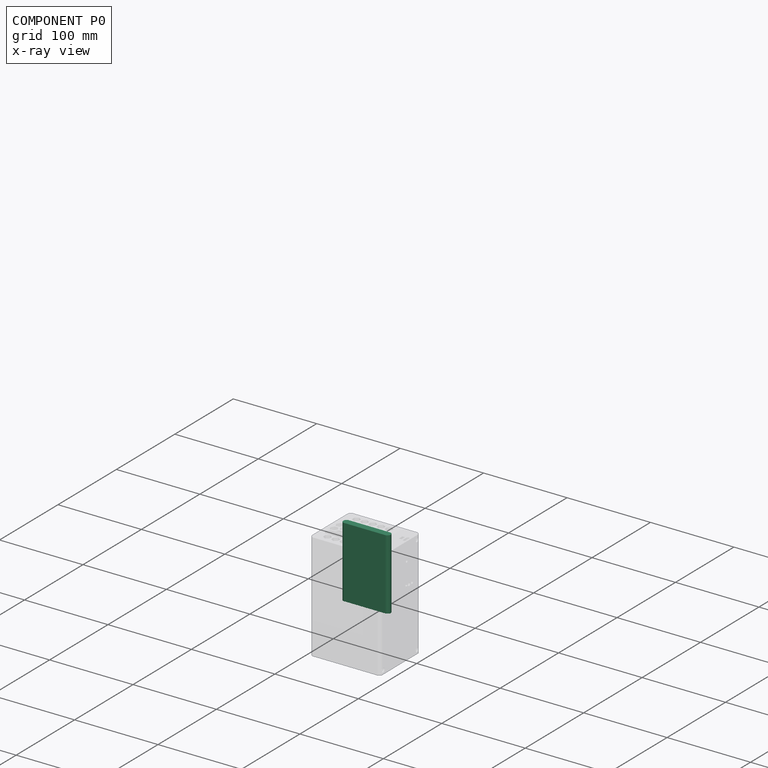
[diagram: component P0 — x-ray view]
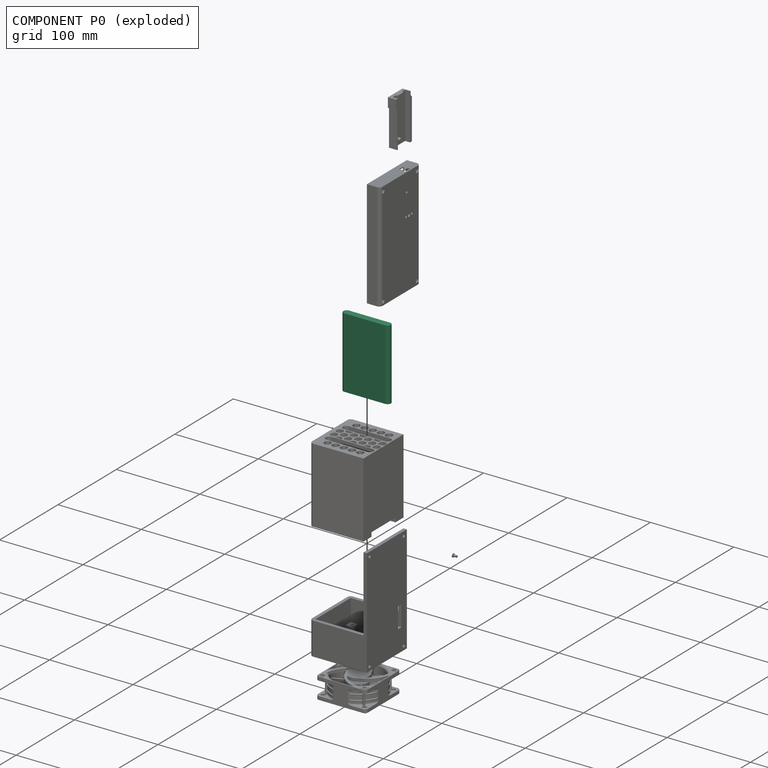
[diagram: component P0 — exploded]
COMPONENT P0 — recipe-attached ("Blank 2", modeled in this document).
Held by: resting contact with P2 (derived edge).
Construction recipe (the document's own serialized feature program — sketch geometry with constraints, then the solid features built on it; lengths are millimeters unless a unit is written):

FEATURE [Sketcher::SketchObject] Sketch
  ArcFitTolerance = 1e-06
  AttachmentSupport = -> [XY_Plane001]
  FullyConstrained = true
  MakeInternals = false
  MapMode = 5
  expr: Constraints[6] = <<Params>>.ssd_width - 2 * <<Params>>.ssd_radius
  expr: Constraints[7] = <<Params>>.ssd_radius
  expr: Constraints[9] = (<<Params>>.ssd_width - 2 * <<Params>>.ssd_radius) / 2
  sketch-geometry (4):
    g0: ArcOfCircle CenterX=-24.5 CenterY=0 CenterZ=0 NormalX=0 NormalY=0 NormalZ=1 AngleXU=0 Radius=4 StartAngle=1.5708 EndAngle=4.71239
    g1: ArcOfCircle CenterX=24.5 CenterY=-1.6e-15 CenterZ=0 NormalX=0 NormalY=0 NormalZ=1 AngleXU=0 Radius=4 StartAngle=4.71239 EndAngle=7.85398
    g2: LineSegment StartX=-24.5 StartY=4 StartZ=0 EndX=24.5 EndY=4 EndZ=0
    g3: LineSegment StartX=-24.5 StartY=-4 StartZ=0 EndX=24.5 EndY=-4 EndZ=0
  constraints (10):
    c: Tangent(g0,g2) = 1.5708
    c: Tangent(g0,g3) = -1.5708
    c: Tangent(g1,g2) = 1.5708
    c: Tangent(g1,g3) = -1.5708
    c: Equal(g0,g1)
    c: Horizontal(g3)
    c: Distance(g0,g1) = 49
    c: Radius(g0) = 4
    c: PointOnObject(g0,g-1)
    c: Distance(g0,g-1) = 24.5
FEATURE [PartDesign::Pad] Pad
  Direction = (0,0,1)
  Length = 85
  Length2 = 10
  Profile = -> Sketch
  ReferenceAxis = -> Sketch [N_Axis]
  Refine = true
  Suppressed = false
  Type = 0
  expr: Length = <<Params>>.ssd_height
FEATURE [PartDesign::Body] Body  label="BlankBody"
  AllowCompound = false
  Group = -> [Sketch,Pad]
  Origin = -> Origin001
  Tip = -> Pad
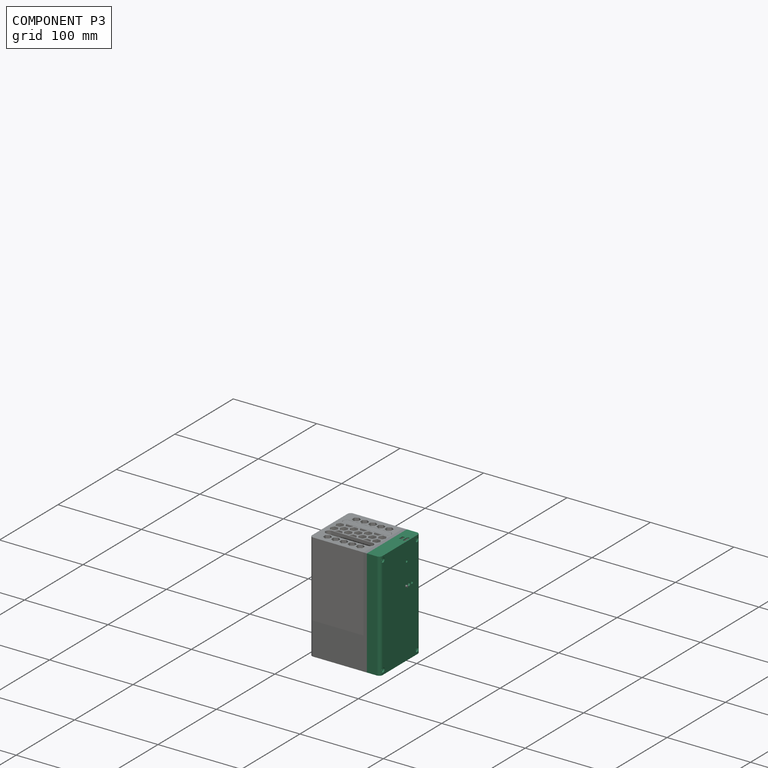
[diagram: component P3 — assembled]
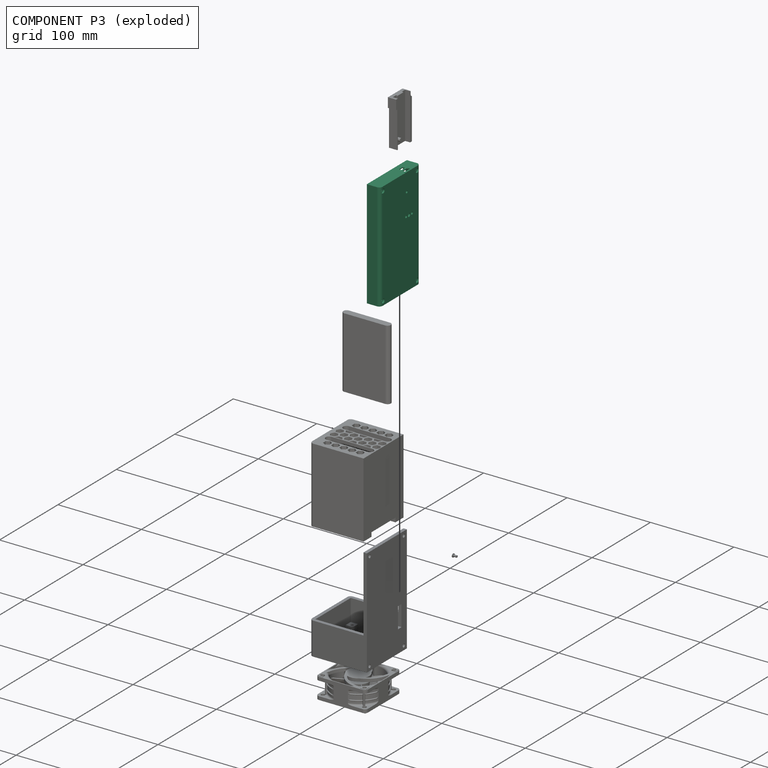
[diagram: component P3 — exploded]
COMPONENT P3 — recipe-attached ("Sidecar", modeled in this document).
Held by: resting contact with P1 (derived edge); resting contact with P4 (derived edge); resting contact with P5 (derived edge).
Construction recipe (the document's own serialized feature program — sketch geometry with constraints, then the solid features built on it; lengths are millimeters unless a unit is written):

FEATURE [Sketcher::SketchObject] Sketch016
  ArcFitTolerance = 1e-06
  AttachmentSupport = -> [YZ_Plane008]
  FullyConstrained = true
  MakeInternals = false
  MapMode = 5
  Placement = pos=(0,0,0) rot=(0.57735,0.57735,0.57735;2.0944rad)
  expr: Constraints[10] = <<Params>>.fan_dimension + 2 * (<<Params>>.wall_thickness + <<Params>>.wall_margin)
  expr: Constraints[11] = <<Params>>.overall_height
  expr: Constraints[12] = <<Params>>.bottom_thickness + <<Params>>.fan_airgap + <<Params>>.fan_depth
  sketch-geometry (5):
    g0: LineSegment StartX=-34.2 StartY=90 StartZ=0 EndX=-34.2 EndY=-39 EndZ=0
    g1: LineSegment StartX=-34.2 StartY=-39 StartZ=0 EndX=34.2 EndY=-39 EndZ=0
    g2: LineSegment StartX=34.2 StartY=-39 StartZ=0 EndX=34.2 EndY=90 EndZ=0
    g3: LineSegment StartX=34.2 StartY=90 StartZ=0 EndX=-34.2 EndY=90 EndZ=0
    g4: GeomPoint [constr] X=0 Y=25.5 Z=0
  constraints (13):
    c: Coincident(g0,g1)
    c: Coincident(g1,g2)
    c: Coincident(g2,g3)
    c: Coincident(g3,g0)
    c: Vertical(g0)
    c: Vertical(g2)
    c: Horizontal(g1)
    c: Horizontal(g3)
    c: Symmetric(g2,g0,g4)
    c: PointOnObject(g4,g-2)
    c: DistanceX(g1,g1) = 68.4
    c: DistanceY(g1,g2) = 129
    c: Distance(g-1,g1) = 39
FEATURE [PartDesign::Pad] Pad004  label="SidecarVolume"
  Direction = (1,0,0)
  Length = 16
  Length2 = 10
  Placement = pos=(0,0,0) rot=(1,1,1;2.0944rad)
  Profile = -> Sketch016
  ReferenceAxis = -> Sketch016 [N_Axis]
  Suppressed = false
  Type = 0
  expr: Length = <<Params>>.sidecar_depth
FEATURE [PartDesign::Fillet] Fillet002
  Base = -> Pad004 [Edge4,Edge10]
  BaseFeature = -> Pad004
  Placement = pos=(0,0,0) rot=(1,1,1;2.0944rad)
  Radius = 4
  SupportTransform = false
  Suppressed = false
  UseAllEdges = false
  expr: Radius = <<Params>>.wall_thickness
FEATURE [Sketcher::SketchObject] Sketch017
  ArcFitTolerance = 1e-06
  AttachmentSupport = -> [Fillet002]
  ExternalGeometry = -> [Fillet002]
  FullyConstrained = true
  MakeInternals = false
  MapMode = 5
  Placement = pos=(16,-3.6e-15,1.8e-15) rot=(0.57735,0.57735,0.57735;2.0944rad)
  expr: Constraints[0] = <<Params>>.sidecar_bolt_diameter
  expr: Constraints[10] = <<Params>>.side_insert_inset
  expr: Constraints[11] = <<Params>>.side_insert_inset
  expr: Constraints[1] = <<Params>>.sidecar_bolt_diameter
  expr: Constraints[2] = <<Params>>.sidecar_bolt_diameter
  expr: Constraints[3] = <<Params>>.sidecar_bolt_diameter
  expr: Constraints[4] = <<Params>>.side_insert_inset
  expr: Constraints[5] = <<Params>>.side_insert_inset
  expr: Constraints[6] = <<Params>>.side_insert_inset
  expr: Constraints[7] = <<Params>>.side_insert_inset
  expr: Constraints[8] = <<Params>>.side_insert_inset
  expr: Constraints[9] = <<Params>>.side_insert_inset
  sketch-geometry (4):
    g0: Circle CenterX=-29.2 CenterY=85 CenterZ=0 NormalX=0 NormalY=0 NormalZ=1 AngleXU=0 Radius=1.4
    g1: Circle CenterX=29.2 CenterY=85 CenterZ=0 NormalX=0 NormalY=0 NormalZ=1 AngleXU=0 Radius=1.4
    g2: Circle CenterX=29.2 CenterY=-34 CenterZ=0 NormalX=0 NormalY=0 NormalZ=1 AngleXU=0 Radius=1.4
    g3: Circle CenterX=-29.2 CenterY=-34 CenterZ=0 NormalX=0 NormalY=0 NormalZ=1 AngleXU=0 Radius=1.4
  constraints (12):
    c: Diameter(g0) = 2.8
    c: Diameter(g1) = 2.8
    c: Diameter(g2) = 2.8
    c: Diameter(g3) = 2.8
    c: Distance(g3,g-5) = 5
    c: Distance(g3,g-4) = 5
    c: Distance(g2,g-4) = 5
    c: Distance(g2,g-6) = 5
    c: Distance(g1,g-3) = 5
    c: Distance(g1,g-6) = 5
    c: Distance(g0,g-5) = 5
    c: Distance(g0,g-3) = 5
FEATURE [PartDesign::Pocket] Pocket016  label="SidecarBoltHoles"
  BaseFeature = -> Fillet002
  Direction = (-1,0,0)
  Length = 16
  Length2 = 5
  Placement = pos=(0,0,0) rot=(1,1,1;2.0944rad)
  Profile = -> Sketch017
  ReferenceAxis = -> Sketch017 [N_Axis]
  Suppressed = false
  Type = 0
  expr: Length = <<Params>>.sidecar_depth
FEATURE [Sketcher::SketchObject] Sketch018
  ArcFitTolerance = 1e-06
  AttachmentSupport = -> [Pocket016]
  ExternalGeometry = -> [Fillet002]
  FullyConstrained = true
  MakeInternals = false
  MapMode = 5
  Placement = pos=(16,-7.1e-15,3.6e-15) rot=(0.57735,0.57735,0.57735;2.0944rad)
  expr: Constraints[0] = 5.2 mm
  expr: Constraints[10] = <<Params>>.side_insert_inset
  expr: Constraints[11] = <<Params>>.side_insert_inset
  expr: Constraints[1] = 5.2
  expr: Constraints[2] = 5.2
  expr: Constraints[3] = 5.2
  expr: Constraints[4] = <<Params>>.side_insert_inset
  expr: Constraints[5] = <<Params>>.side_insert_inset
  expr: Constraints[6] = <<Params>>.side_insert_inset
  expr: Constraints[7] = <<Params>>.side_insert_inset
  expr: Constraints[8] = <<Params>>.side_insert_inset
  expr: Constraints[9] = <<Params>>.side_insert_inset
  sketch-geometry (4):
    g0: Circle CenterX=-29.2 CenterY=85 CenterZ=0 NormalX=0 NormalY=0 NormalZ=1 AngleXU=0 Radius=2.6
    g1: Circle CenterX=29.2 CenterY=85 CenterZ=0 NormalX=0 NormalY=0 NormalZ=1 AngleXU=0 Radius=2.6
    g2: Circle CenterX=29.2 CenterY=-34 CenterZ=0 NormalX=0 NormalY=0 NormalZ=1 AngleXU=0 Radius=2.6
    g3: Circle CenterX=-29.2 CenterY=-34 CenterZ=0 NormalX=0 NormalY=0 NormalZ=1 AngleXU=0 Radius=2.6
  constraints (12):
    c: Diameter(g0) = 5.2
    c: Diameter(g1) = 5.2
    c: Diameter(g2) = 5.2
    c: Diameter(g3) = 5.2
    c: Distance(g3,g-5) = 5
    c: Distance(g3,g-4) = 5
    c: Distance(g2,g-4) = 5
    c: Distance(g2,g-6) = 5
    c: Distance(g1,g-3) = 5
    c: Distance(g1,g-6) = 5
    c: Distance(g0,g-5) = 5
    c: Distance(g0,g-3) = 5
FEATURE [PartDesign::Pocket] Pocket017  label="SidecarBoltRecesses"
  BaseFeature = -> Pocket016
  Direction = (-1,0,0)
  Length = 2
  Length2 = 5
  Placement = pos=(0,0,0) rot=(1,1,1;2.0944rad)
  Profile = -> Sketch018
  ReferenceAxis = -> Sketch018 [N_Axis]
  Suppressed = false
  Type = 0
FEATURE [Sketcher::SketchObject] Sketch019
  ArcFitTolerance = 1e-06
  AttachmentSupport = -> [Pocket017]
  ExternalGeometry = -> [Pocket017]
  FullyConstrained = true
  MakeInternals = false
  MapMode = 5
  Placement = pos=(-1.7e-14,0,0) rot=(0.57735,0.57735,-0.57735;4.18879rad)
  expr: Constraints[10] = <<Params>>.side_insert_inset
  expr: Constraints[15] = <<Params>>.side_insert_inset
  expr: Constraints[20] = <<Params>>.sidecar_bolt_diameter / 2 + 2 mm
  expr: Constraints[21] = <<Params>>.sidecar_bolt_diameter / 2 + 2 mm
  expr: Constraints[29] = <<Params>>.wall_thickness / 2
  expr: Constraints[33] = <<Params>>.wall_thickness / 2
  expr: Constraints[42] = <<Params>>.wall_thickness / 2
  expr: Constraints[47] = <<Params>>.sidecar_bolt_diameter / 2 + 2 mm
  expr: Constraints[56] = <<Params>>.overall_height / 2
  expr: Constraints[67] = <<Params>>.wall_thickness / 2
  expr: Constraints[68] = <<Params>>.wall_thickness / 2
  expr: Constraints[82] = <<Params>>.wall_thickness / 2
  expr: Constraints[88] = (<<Params>>.overall_height - 10 mm) / 2
  expr: Constraints[8] = <<Params>>.side_insert_inset
  expr: Constraints[9] = <<Params>>.side_insert_inset
  sketch-geometry (29):
    g0: ArcOfCircle CenterX=29.2 CenterY=34 CenterZ=0 NormalX=0 NormalY=0 NormalZ=1 AngleXU=0 Radius=3.4 StartAngle=3.14159 EndAngle=4.71239
    g1: ArcOfCircle CenterX=29.2 CenterY=-85 CenterZ=0 NormalX=0 NormalY=0 NormalZ=1 AngleXU=0 Radius=2.4 StartAngle=1.5708 EndAngle=3.14159
    g2: ArcOfCircle CenterX=-29.2 CenterY=-85 CenterZ=0 NormalX=0 NormalY=0 NormalZ=1 AngleXU=0 Radius=3.4 StartAngle=1.5e-15 EndAngle=1.5708
    g3: ArcOfCircle CenterX=-29.2 CenterY=34 CenterZ=0 NormalX=0 NormalY=0 NormalZ=1 AngleXU=0 Radius=3.4 StartAngle=4.71239 EndAngle=6.28319
    g4: LineSegment StartX=-25.8 StartY=-89 StartZ=0 EndX=26.8 EndY=-89 EndZ=0
    g5: LineSegment StartX=26.8 StartY=-89 StartZ=0 EndX=26.8 EndY=-85 EndZ=0
    g6: LineSegment StartX=-25.8 StartY=34 StartZ=0 EndX=-25.8 EndY=37 EndZ=0
    g7: LineSegment StartX=-25.8 StartY=37 StartZ=0 EndX=25.8 EndY=37 EndZ=0
    g8: LineSegment StartX=25.8 StartY=37 StartZ=0 EndX=25.8 EndY=34 EndZ=0
    g9: LineSegment StartX=-29.2 StartY=30.6 StartZ=0 EndX=-32.2 EndY=30.6 EndZ=0
    g10: LineSegment StartX=-32.2 StartY=-81.6 StartZ=0 EndX=-29.2 EndY=-81.6 EndZ=0
    g11: LineSegment StartX=29.2 StartY=-82.6 StartZ=0 EndX=32.2 EndY=-82.6 EndZ=0
    g12: LineSegment StartX=32.2 StartY=-82.6 StartZ=0 EndX=32.2 EndY=30.6 EndZ=0
    g13: LineSegment StartX=32.2 StartY=30.6 StartZ=0 EndX=29.2 EndY=30.6 EndZ=0
    g14: LineSegment StartX=-25.8 StartY=-89 StartZ=0 EndX=-25.8 EndY=-85 EndZ=0
    g15: LineSegment StartX=-32.2 StartY=24.5 StartZ=0 EndX=-32.2 EndY=-75.5 EndZ=0
    g16: LineSegment StartX=-32.2 StartY=-75.5 StartZ=0 EndX=1.8 EndY=-75.5 EndZ=0
    g17: LineSegment StartX=1.8 StartY=24.5 StartZ=0 EndX=-32.2 EndY=24.5 EndZ=0
    g18: GeomPoint [constr] X=-15.2 Y=-25.5 Z=0
    g19: LineSegment StartX=-32.2 StartY=30.6 StartZ=0 EndX=-32.2 EndY=26.5 EndZ=0
    g20: LineSegment StartX=-32.2 StartY=26.5 StartZ=0 EndX=3.8 EndY=26.5 EndZ=0
    g21: LineSegment StartX=3.8 StartY=-77.5 StartZ=0 EndX=-32.2 EndY=-77.5 EndZ=0
    g22: LineSegment StartX=-32.2 StartY=-77.5 StartZ=0 EndX=-32.2 EndY=-81.6 EndZ=0
    g23: LineSegment StartX=1.8 StartY=24.5 StartZ=0 EndX=1.8 EndY=-20.5 EndZ=0
    g24: LineSegment StartX=3.8 StartY=26.5 StartZ=0 EndX=3.8 EndY=-20.5 EndZ=0
    g25: LineSegment StartX=1.8 StartY=-20.5 StartZ=0 EndX=3.8 EndY=-20.5 EndZ=0
    g26: LineSegment StartX=1.8 StartY=-75.5 StartZ=0 EndX=1.8 EndY=-30.5 EndZ=0
    g27: LineSegment StartX=1.8 StartY=-30.5 StartZ=0 EndX=3.8 EndY=-30.5 EndZ=0
    g28: LineSegment StartX=3.8 StartY=-30.5 StartZ=0 EndX=3.8 EndY=-77.5 EndZ=0
  constraints (89):
    c: Vertical(g3,g3)
    c: Vertical(g2,g2)
    c: Horizontal(g2,g2)
    c: Horizontal(g3,g3)
    c: Horizontal(g0,g0)
    c: Vertical(g0,g0)
    c: Vertical(g1,g1)
    c: Horizontal(g1,g1)
    c: Distance(g2,g-4) = 5
    c: Distance(g1,g-6) = 5
    c: Distance(g1,g-3) = 5
    c: Horizontal(g2,g1)
    c: Vertical(g1,g0)
    c: Horizontal(g0,g3)
    c: Vertical(g3,g2)
    c: Distance(g0,g-5) = 5
    c: Horizontal(g4)
    c: Coincident(g5,g4)
    c: Vertical(g5)
    c: Distance(g-3,g4) = 1
    c: Radius(g0) = 3.4
    c: Radius(g3) = 3.4
    c: Coincident(g6,g3)
    c: Vertical(g6)
    c: Coincident(g7,g6)
    c: Horizontal(g7)
    c: Coincident(g8,g7)
    c: Coincident(g8,g0)
    c: Vertical(g8)
    c: Distance(g-5,g7) = 2
    c: Horizontal(g9)
    c: Horizontal(g10)
    c: Coincident(g10,g2)
    c: Distance(g9,g-4) = 2
    c: Coincident(g9,g3)
    c: Coincident(g11,g1)
    c: Horizontal(g11)
    c: Coincident(g12,g11)
    c: Vertical(g12)
    c: Coincident(g13,g12)
    c: Coincident(g13,g0)
    c: Horizontal(g13)
    c: Distance(g-6,g12) = 2
    c: Coincident(g5,g1)
    c: Coincident(g14,g4)
    c: Coincident(g14,g2)
    c: Vertical(g14)
    c: Radius(g2) = 3.4
    c: Coincident(g15,g16)
    c: Coincident(g17,g15)
    c: Vertical(g15)
    c: Horizontal(g16)
    c: Horizontal(g17)
    c: Symmetric(g16,g15,g18)
    c: DistanceX(g17,g17) = 34
    c: DistanceY(g16,g17) = 100
    c: Distance(g18,g-3) = 64.5
    c: Vertical(g15,g9)
    c: Vertical(g10,g15)
    c: Coincident(g9,g19)
    c: Vertical(g19)
    c: Coincident(g19,g20)
    c: Horizontal(g20)
    c: Horizontal(g21)
    c: Coincident(g21,g22)
    c: Coincident(g22,g10)
    c: Vertical(g22)
    c: Distance(g20,g17) = 2
    c: Distance(g16,g21) = 2
    c: Coincident(g23,g17)
    c: Vertical(g23)
    c: Coincident(g24,g20)
    c: Vertical(g24)
    c: Coincident(g25,g23)
    c: Coincident(g25,g24)
    c: Coincident(g26,g16)
    c: Vertical(g26)
    c: Coincident(g27,g26)
    c: Horizontal(g27)
    c: Coincident(g28,g27)
    c: Coincident(g28,g21)
    c: Vertical(g28)
    c: Distance(g24,g23) = 2
    c: Horizontal(g25)
    c: Vertical(g24,g27)
    c: Vertical(g26,g23)
    c: Distance(g27,g25) = 10
    c: Distance(g1,g-7) = 1
    c: Distance(g-3,g27) = 59.5
FEATURE [PartDesign::Pocket] Pocket018  label="ElectronicsCutout"
  BaseFeature = -> Pocket017
  Direction = (1,0,0)
  Length = 11
  Length2 = 5
  Placement = pos=(0,0,0) rot=(1,1,1;2.0944rad)
  Profile = -> Sketch019
  ReferenceAxis = -> Sketch019 [N_Axis]
  Suppressed = false
  Type = 0
  expr: Length = 11 mm
FEATURE [Sketcher::SketchObject] Sketch020
  ArcFitTolerance = 1e-06
  AttachmentSupport = -> [Pocket018]
  ExternalGeometry = -> [Pocket018]
  FullyConstrained = true
  MakeInternals = false
  MapMode = 5
  Placement = pos=(11,-2.4e-15,1.2e-15) rot=(0.57735,0.57735,-0.57735;4.18879rad)
  sketch-geometry (5):
    g0: LineSegment StartX=4.8 StartY=-89 StartZ=0 EndX=25.8 EndY=-89 EndZ=0
    g1: LineSegment StartX=25.8 StartY=-89 StartZ=0 EndX=25.8 EndY=-36.6 EndZ=0
    g2: LineSegment StartX=25.8 StartY=-36.6 StartZ=0 EndX=4.8 EndY=-36.6 EndZ=0
    g3: LineSegment StartX=4.8 StartY=-36.6 StartZ=0 EndX=4.8 EndY=-89 EndZ=0
    g4: GeomPoint [constr] X=15.3 Y=-62.8 Z=0
  constraints (13):
    c: Coincident(g0,g1)
    c: Coincident(g1,g2)
    c: Coincident(g2,g3)
    c: Coincident(g3,g0)
    c: Horizontal(g0)
    c: Horizontal(g2)
    c: Vertical(g1)
    c: Vertical(g3)
    c: Symmetric(g2,g0,g4)
    c: Distance(g1,g3) = 21
    c: Distance(g0,g2) = 52.4
    c: PointOnObject(g0,g-4)
    c: Distance(g-3,g3) = 1
FEATURE [PartDesign::Pocket] Pocket019  label="PicoCutout"
  BaseFeature = -> Pocket018
  Direction = (1,0,0)
  Length = 3
  Length2 = 5
  Placement = pos=(0,0,0) rot=(1,1,1;2.0944rad)
  Profile = -> Sketch020
  ReferenceAxis = -> Sketch020 [N_Axis]
  Suppressed = false
  Type = 0
FEATURE [Sketcher::SketchObject] Sketch021
  ArcFitTolerance = 1e-06
  AttachmentSupport = -> [Pocket019]
  ExternalGeometry = -> [Pocket019]
  FullyConstrained = true
  MakeInternals = false
  MapMode = 5
  Placement = pos=(-9.9e-15,2.96e-14,89) rot=(0.707107,0.707107,0;3.14159rad)
  expr: Constraints[9] = (21 mm - 6 mm) / 2
  sketch-geometry (9):
    g0: ArcOfCircle CenterX=12.3 CenterY=12.5 CenterZ=0 NormalX=0 NormalY=0 NormalZ=1 AngleXU=0 Radius=1.5 StartAngle=1.5708 EndAngle=4.71239
    g1: ArcOfCircle CenterX=18.3 CenterY=12.5 CenterZ=0 NormalX=0 NormalY=0 NormalZ=1 AngleXU=0 Radius=1.5 StartAngle=4.71239 EndAngle=7.85398
    g2: LineSegment StartX=12.3 StartY=14 StartZ=0 EndX=18.3 EndY=14 EndZ=0
    g3: LineSegment StartX=12.3 StartY=11 StartZ=0 EndX=18.3 EndY=11 EndZ=0
    g4: LineSegment StartX=12.3 StartY=9 StartZ=0 EndX=12.3 EndY=6 EndZ=0
    g5: LineSegment StartX=12.3 StartY=6 StartZ=0 EndX=18.3 EndY=6 EndZ=0
    g6: LineSegment StartX=18.3 StartY=6 StartZ=0 EndX=18.3 EndY=9 EndZ=0
    g7: LineSegment StartX=18.3 StartY=9 StartZ=0 EndX=12.3 EndY=9 EndZ=0
    g8: GeomPoint [constr] X=15.3 Y=7.5 Z=0
  constraints (23):
    c: Tangent(g0,g2) = 1.5708
    c: Tangent(g0,g3) = -1.5708
    c: Tangent(g1,g2) = 1.5708
    c: Tangent(g1,g3) = -1.5708
    c: Equal(g0,g1)
    c: Horizontal(g2)
    c: PointOnObject(g0,g-3)
    c: PointOnObject(g0,g-4)
    c: DistanceX(g0,g1) = 6
    c: Distance(g0,g-6) = 7.5
    c: Coincident(g4,g5)
    c: Coincident(g5,g6)
    c: Coincident(g6,g7)
    c: Coincident(g7,g4)
    c: Vertical(g4)
    c: Vertical(g6)
    c: Horizontal(g5)
    c: Horizontal(g7)
    c: Symmetric(g6,g4,g8)
    c: Distance(g7,g3) = 2
    c: Distance(g4,g4) = 3
    c: Vertical(g4,g0)
    c: Vertical(g6,g1)
FEATURE [PartDesign::Pocket] Pocket020  label="ConnectorCutout"
  BaseFeature = -> Pocket019
  Direction = (0,0,1)
  Length = 1
  Length2 = 5
  Placement = pos=(0,0,0) rot=(1,1,1;2.0944rad)
  Profile = -> Sketch021
  ReferenceAxis = -> Sketch021 [N_Axis]
  Suppressed = false
  Type = 0
FEATURE [Sketcher::SketchObject] Sketch022
  ArcFitTolerance = 1e-06
  AttachmentSupport = -> [Pocket020]
  ExternalGeometry = -> [Pocket020]
  FullyConstrained = true
  MakeInternals = false
  MapMode = 5
  Placement = pos=(11,-7.3e-15,3.7e-15) rot=(0.57735,0.57735,-0.57735;4.18879rad)
  expr: Constraints[19] = <<Params>>.wall_thickness / 2
  expr: Constraints[29] = <<Params>>.wall_thickness / 2
  sketch-geometry (11):
    g0: LineSegment StartX=1.8 StartY=-77.5 StartZ=0 EndX=1.8 EndY=-89 EndZ=0
    g1: LineSegment StartX=1.8 StartY=-89 StartZ=0 EndX=3.8 EndY=-89 EndZ=0
    g2: LineSegment StartX=3.8 StartY=-89 StartZ=0 EndX=3.8 EndY=-77.5 EndZ=0
    g3: LineSegment StartX=3.8 StartY=-77.5 StartZ=0 EndX=1.8 EndY=-77.5 EndZ=0
    g4: GeomPoint [constr] X=2.8 Y=-83.25 Z=0
    g5: LineSegment StartX=1.8 StartY=-33.6 StartZ=0 EndX=28.8 EndY=-33.6 EndZ=0
    g6: LineSegment StartX=28.8 StartY=-33.6 StartZ=0 EndX=28.8 EndY=-77.5 EndZ=0
    g7: LineSegment StartX=28.8 StartY=-77.5 StartZ=0 EndX=26.8 EndY=-77.5 EndZ=0
    g8: LineSegment StartX=26.8 StartY=-77.5 StartZ=0 EndX=26.8 EndY=-35.6 EndZ=0
    g9: LineSegment StartX=26.8 StartY=-35.6 StartZ=0 EndX=1.8 EndY=-35.6 EndZ=0
    g10: LineSegment StartX=1.8 StartY=-35.6 StartZ=0 EndX=1.8 EndY=-33.6 EndZ=0
  constraints (30):
    c: Coincident(g0,g1)
    c: Coincident(g1,g2)
    c: Coincident(g2,g3)
    c: Coincident(g3,g0)
    c: Vertical(g0)
    c: Vertical(g2)
    c: Horizontal(g1)
    c: Horizontal(g3)
    c: Symmetric(g2,g0,g4)
    c: Vertical(g0,g-8)
    c: Coincident(g2,g-7)
    c: PointOnObject(g1,g-6)
    c: Horizontal(g5)
    c: Coincident(g6,g5)
    c: Vertical(g6)
    c: Coincident(g7,g6)
    c: Horizontal(g7)
    c: Coincident(g8,g7)
    c: Vertical(g8)
    c: Distance(g6,g8) = 2
    c: Distance(g8,g-4) = 1
    c: Horizontal(g2,g7)
    c: Coincident(g9,g8)
    c: Horizontal(g9)
    c: Coincident(g10,g9)
    c: Vertical(g10)
    c: Coincident(g5,g10)
    c: Distance(g-5,g9) = 1
    c: PointOnObject(g5,g-8)
    c: Distance(g9,g5) = 2
FEATURE [PartDesign::Pad] Pad005  label="PicoRetainers"
  BaseFeature = -> Pocket020
  Direction = (-1,0,0)
  Length = 1.2
  Length2 = 10
  Placement = pos=(0,0,0) rot=(1,1,1;2.0944rad)
  Profile = -> Sketch022
  ReferenceAxis = -> Sketch022 [N_Axis]
  Suppressed = false
  Type = 0
FEATURE [Sketcher::SketchObject] Sketch023
  ArcFitTolerance = 1e-06
  AttachmentSupport = -> [Pad005]
  ExternalGeometry = -> [Pad005]
  FullyConstrained = true
  MakeInternals = false
  MapMode = 5
  Placement = pos=(14,-9.3e-15,4.7e-15) rot=(0.57735,0.57735,-0.57735;4.18879rad)
  expr: Constraints[1] = 6.5 mm - 1 mm
  expr: Constraints[5] = 21 mm / 2
  sketch-geometry (4):
    g0: Circle CenterX=15.3 CenterY=-42.1 CenterZ=0 NormalX=0 NormalY=0 NormalZ=1 AngleXU=0 Radius=2
    g1: Circle CenterX=10.3 CenterY=-42.1 CenterZ=0 NormalX=0 NormalY=0 NormalZ=1 AngleXU=0 Radius=1.5
    g2: Circle CenterX=20.3 CenterY=-42.1 CenterZ=0 NormalX=0 NormalY=0 NormalZ=1 AngleXU=0 Radius=1.5
    g3: Circle CenterX=11.3 CenterY=-68.5 CenterZ=0 NormalX=0 NormalY=0 NormalZ=1 AngleXU=0 Radius=1.5
  constraints (12):
    c: Diameter(g0) = 4
    c: Distance(g0,g-3) = 5.5
    c: Diameter(g1) = 3
    c: Horizontal(g1,g0)
    c: Distance(g1,g-4) = 5.5
    c: Distance(g0,g-4) = 10.5
    c: Diameter(g2) = 3
    c: Horizontal(g2,g0)
    c: Distance(g2,g-5) = 5.5
    c: Diameter(g3) = 3
    c: Distance(g3,g-6) = 20.5
    c: Distance(g3,g-4) = 6.5
FEATURE [PartDesign::Pocket] Pocket021  label="PicoIO"
  BaseFeature = -> Pad005
  Direction = (1,0,0)
  Length = 5
  Length2 = 5
  Placement = pos=(0,0,0) rot=(1,1,1;2.0944rad)
  Profile = -> Sketch023
  ReferenceAxis = -> Sketch023 [N_Axis]
  Suppressed = false
  Type = 0
FEATURE [PartDesign::Body] Body003  label="SidecarBody"
  AllowCompound = false
  Group = -> [Sketch016,Pad004,Fillet002,Sketch017,Pocket016,Sketch018,Pocket017,Sketch019,Pocket018,Sketch020,Pocket019,Sketch021,Pocket020,Sketch022,Pad005,Sketch023,Pocket021]
  Origin = -> Origin008
  Tip = -> Pocket021
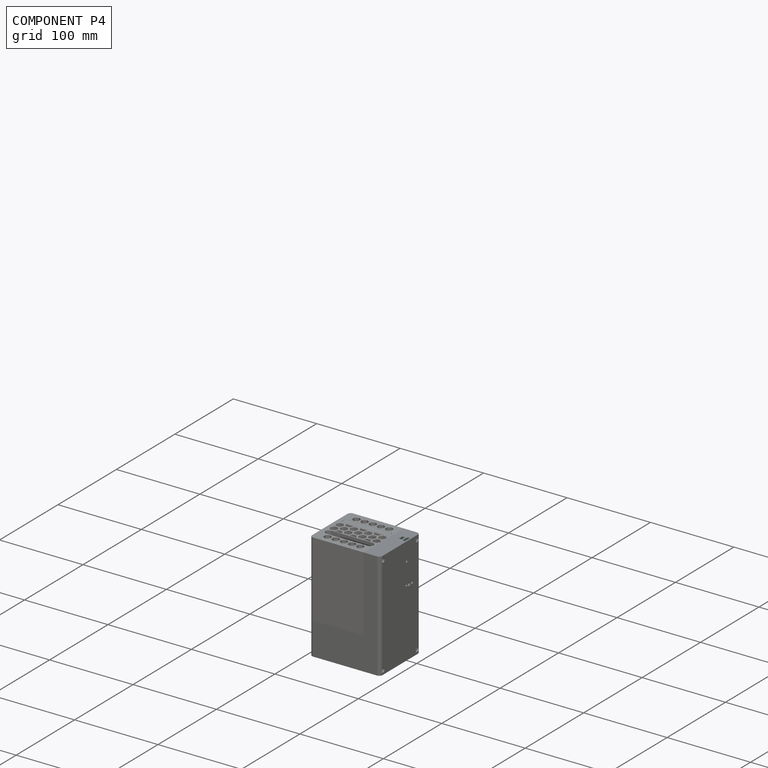
[diagram: component P4 — assembled]
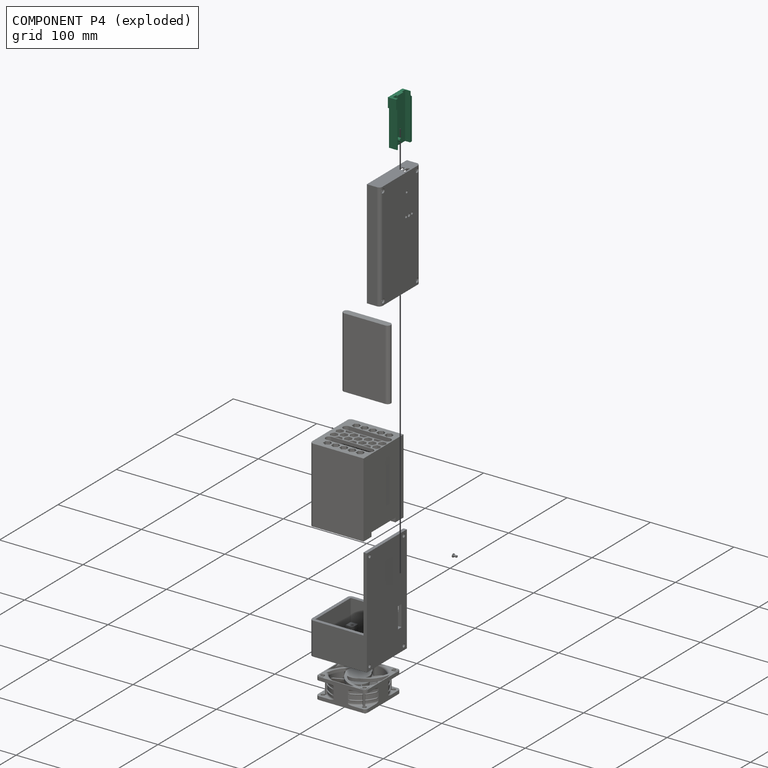
[diagram: component P4 — exploded]
COMPONENT P4 — recipe-attached ("PicoSpacer", modeled in this document).
Held by: resting contact with P1 (derived edge); resting contact with P3 (derived edge); resting contact with P5 (derived edge).
Construction recipe (the document's own serialized feature program — sketch geometry with constraints, then the solid features built on it; lengths are millimeters unless a unit is written):

FEATURE [Sketcher::SketchObject] Sketch024
  ArcFitTolerance = 1e-06
  AttachmentSupport = -> [YZ_Plane010]
  FullyConstrained = true
  MakeInternals = false
  MapMode = 5
  Placement = pos=(0,0,0) rot=(0.57735,0.57735,0.57735;2.0944rad)
  sketch-geometry (5):
    g0: LineSegment StartX=-13.5 StartY=-27.7 StartZ=0 EndX=13.5 EndY=-27.7 EndZ=0
    g1: LineSegment StartX=13.5 StartY=-27.7 StartZ=0 EndX=13.5 EndY=27.7 EndZ=0
    g2: LineSegment StartX=13.5 StartY=27.7 StartZ=0 EndX=-13.5 EndY=27.7 EndZ=0
    g3: LineSegment StartX=-13.5 StartY=27.7 StartZ=0 EndX=-13.5 EndY=-27.7 EndZ=0
    g4: GeomPoint [constr] X=0 Y=0 Z=0
  constraints (13):
    c: Coincident(g0,g1)
    c: Coincident(g1,g2)
    c: Coincident(g2,g3)
    c: Coincident(g3,g0)
    c: Horizontal(g0)
    c: Horizontal(g2)
    c: Vertical(g1)
    c: Vertical(g3)
    c: Symmetric(g2,g0,g4)
    c: Distance(g1,g3) = 27
    c: Distance(g0,g2) = 55.4
    c: PointOnObject(g4,g-2)
    c: PointOnObject(g4,g-1)
FEATURE [PartDesign::Pad] Pad006  label="PicoSpacerVolume"
  Direction = (1,0,0)
  Length = 9.8
  Length2 = 10
  Placement = pos=(0,0,0) rot=(1,1,1;2.0944rad)
  Profile = -> Sketch024
  ReferenceAxis = -> Sketch024 [N_Axis]
  Suppressed = false
  Type = 0
FEATURE [Sketcher::SketchObject] Sketch025
  ArcFitTolerance = 1e-06
  AttachmentSupport = -> [Pad006]
  ExternalGeometry = -> [Pad006]
  FullyConstrained = true
  MakeInternals = false
  MapMode = 5
  Placement = pos=(9.8,-2.2e-15,1.1e-15) rot=(0.57735,0.57735,0.57735;2.0944rad)
  sketch-geometry (4):
    g0: LineSegment StartX=-10.5 StartY=27.7 StartZ=0 EndX=-10.5 EndY=-27.7 EndZ=0
    g1: LineSegment StartX=10.5 StartY=-27.7 StartZ=0 EndX=10.5 EndY=27.7 EndZ=0
    g2: LineSegment StartX=10.5 StartY=27.7 StartZ=0 EndX=-10.5 EndY=27.7 EndZ=0
    g3: LineSegment StartX=-10.5 StartY=-27.7 StartZ=0 EndX=10.5 EndY=-27.7 EndZ=0
  constraints (12):
    c: Coincident(g1,g2)
    c: Coincident(g2,g0)
    c: Vertical(g0)
    c: Vertical(g1)
    c: Horizontal(g2)
    c: Distance(g-5,g1) = 3
    c: Distance(g-4,g0) = 3
    c: PointOnObject(g0,g-3)
    c: PointOnObject(g0,g-6)
    c: PointOnObject(g1,g-6)
    c: Coincident(g3,g0)
    c: Coincident(g3,g1)
FEATURE [PartDesign::Pocket] Pocket022
  BaseFeature = -> Pad006
  Direction = (-1,0,0)
  Length = 6
  Length2 = 5
  Placement = pos=(0,0,0) rot=(1,1,1;2.0944rad)
  Profile = -> Sketch025
  ReferenceAxis = -> Sketch025 [N_Axis]
  Suppressed = false
  Type = 0
FEATURE [Sketcher::SketchObject] Sketch026
  ArcFitTolerance = 1e-06
  AttachmentSupport = -> [Pocket022]
  ExternalGeometry = -> [Pocket022]
  FullyConstrained = true
  MakeInternals = false
  MapMode = 5
  Placement = pos=(3.8,-8e-16,4e-16) rot=(0.57735,0.57735,0.57735;2.0944rad)
  sketch-geometry (5):
    g0: LineSegment StartX=-5 StartY=27.7 StartZ=0 EndX=-5 EndY=23.7 EndZ=0
    g1: LineSegment StartX=-5 StartY=23.7 StartZ=0 EndX=5 EndY=23.7 EndZ=0
    g2: LineSegment StartX=5 StartY=23.7 StartZ=0 EndX=5 EndY=27.7 EndZ=0
    g3: LineSegment StartX=5 StartY=27.7 StartZ=0 EndX=-5 EndY=27.7 EndZ=0
    g4: GeomPoint [constr] X=0 Y=25.7 Z=0
  constraints (13):
    c: Coincident(g0,g1)
    c: Coincident(g1,g2)
    c: Coincident(g2,g3)
    c: Coincident(g3,g0)
    c: Vertical(g0)
    c: Vertical(g2)
    c: Horizontal(g1)
    c: Horizontal(g3)
    c: Symmetric(g2,g0,g4)
    c: PointOnObject(g4,g-2)
    c: Distance(g3,g3) = 10
    c: Distance(g2,g2) = 4
    c: PointOnObject(g2,g-3)
FEATURE [PartDesign::Pad] Pad007  label="PowerSwitchRetainer"
  BaseFeature = -> Pocket022
  Direction = (1,0,0)
  Length = 2
  Length2 = 10
  Placement = pos=(0,0,0) rot=(1,1,1;2.0944rad)
  Profile = -> Sketch026
  ReferenceAxis = -> Sketch026 [N_Axis]
  Suppressed = false
  Type = 0
FEATURE [Sketcher::SketchObject] Sketch027
  ArcFitTolerance = 1e-06
  AttachmentSupport = -> [Pad007]
  ExternalGeometry = -> [Pad007]
  FullyConstrained = true
  MakeInternals = false
  MapMode = 5
  Placement = pos=(3.8,-1.7e-15,8e-16) rot=(0.57735,0.57735,0.57735;2.0944rad)
  sketch-geometry (1):
    g0: Circle CenterX=-5 CenterY=-19.2 CenterZ=0 NormalX=0 NormalY=0 NormalZ=1 AngleXU=0 Radius=2
  constraints (3):
    c: Diameter(g0) = 4
    c: Distance(g0,g-3) = 5.5
    c: Distance(g0,g-4) = 8.5
FEATURE [PartDesign::Pad] Pad008  label="UserSwitchRetainer"
  BaseFeature = -> Pad007
  Direction = (1,0,0)
  Length = 6
  Length2 = 10
  Placement = pos=(0,0,0) rot=(1,1,1;2.0944rad)
  Profile = -> Sketch027
  ReferenceAxis = -> Sketch027 [N_Axis]
  Suppressed = false
  Type = 0
FEATURE [Sketcher::SketchObject] Sketch028
  ArcFitTolerance = 1e-06
  AttachmentSupport = -> [Pad008]
  ExternalGeometry = -> [Pad008]
  FullyConstrained = true
  MakeInternals = false
  MapMode = 5
  Placement = pos=(0,0,0) rot=(0.57735,0.57735,-0.57735;4.18879rad)
  expr: Constraints[14] = <<Params>>.sidecar_bolt_diameter / 2 + 1 mm
  expr: Constraints[9] = <<Params>>.wall_thickness / 2
  sketch-geometry (8):
    g0: LineSegment StartX=-13.5 StartY=27.7 StartZ=0 EndX=-13.5 EndY=-16.2 EndZ=0
    g1: LineSegment StartX=-13.5 StartY=-16.2 StartZ=0 EndX=-11.5 EndY=-16.2 EndZ=0
    g2: LineSegment StartX=-11.5 StartY=-16.2 StartZ=0 EndX=-11.5 EndY=27.7 EndZ=0
    g3: LineSegment StartX=-11.5 StartY=27.7 StartZ=0 EndX=-13.5 EndY=27.7 EndZ=0
    g4: ArcOfCircle CenterX=13.9 CenterY=-23.7 CenterZ=0 NormalX=0 NormalY=0 NormalZ=1 AngleXU=0 Radius=2.4 StartAngle=1.73824 EndAngle=3.14159
    g5: LineSegment StartX=11.5 StartY=-23.7 StartZ=0 EndX=11.5 EndY=-27.7 EndZ=0
    g6: LineSegment StartX=11.5 StartY=-27.7 StartZ=0 EndX=13.5 EndY=-27.7 EndZ=0
    g7: LineSegment StartX=13.5 StartY=-27.7 StartZ=0 EndX=13.5 EndY=-21.3336 EndZ=0
  constraints (23):
    c: Coincident(g0,g1)
    c: Coincident(g1,g2)
    c: Coincident(g2,g3)
    c: Coincident(g3,g0)
    c: Vertical(g0)
    c: Vertical(g2)
    c: Horizontal(g1)
    c: Horizontal(g3)
    c: Coincident(g0,g-4)
    c: Distance(g1,g0) = 2
    c: DistanceY(g-6,g1) = 11.5
    c: Horizontal(g4,g4)
    c: Distance(g4,g-5) = 0.4
    c: DistanceY(g-6,g4) = 4
    c: Radius(g4) = 2.4
    c: PointOnObject(g4,g-5)
    c: Coincident(g5,g4)
    c: PointOnObject(g5,g-6)
    c: Vertical(g5)
    c: Coincident(g6,g5)
    c: Coincident(g6,g-6)
    c: Coincident(g7,g6)
    c: Coincident(g7,g4)
FEATURE [PartDesign::Pocket] Pocket023
  BaseFeature = -> Pad008
  Direction = (1,0,0)
  Length = 9.8
  Length2 = 5
  Placement = pos=(0,0,0) rot=(1,1,1;2.0944rad)
  Profile = -> Sketch028
  ReferenceAxis = -> Sketch028 [N_Axis]
  Suppressed = false
  Type = 0
FEATURE [Sketcher::SketchObject] Sketch029
  ArcFitTolerance = 1e-06
  AttachmentSupport = -> [Pocket023]
  ExternalGeometry = -> [Pocket023]
  FullyConstrained = true
  MakeInternals = false
  MapMode = 5
  Placement = pos=(3e-15,13.5,-1.95e-14) rot=(0.57735,0.57735,0.57735;4.18879rad)
  sketch-geometry (4):
    g0: LineSegment StartX=-27.7 StartY=4.31e-14 StartZ=0 EndX=20.3336 EndY=4.31e-14 EndZ=0
    g1: LineSegment StartX=20.3336 StartY=4.31e-14 StartZ=0 EndX=20.3336 EndY=4.9 EndZ=0
    g2: LineSegment StartX=-27.7 StartY=4.31e-14 StartZ=0 EndX=-27.7 EndY=4.9 EndZ=0
    g3: LineSegment StartX=-27.7 StartY=4.9 StartZ=0 EndX=20.3336 EndY=4.9 EndZ=0
  constraints (10):
    c: Coincident(g0,g1)
    c: Vertical(g1)
    c: Horizontal(g0)
    c: Distance(g-5,g1) = 1
    c: Coincident(g-3,g0)
    c: Coincident(g2,g0)
    c: Symmetric(g-3,g-3,g2)
    c: Coincident(g3,g2)
    c: Coincident(g3,g1)
    c: Horizontal(g3)
FEATURE [PartDesign::Pad] Pad009
  BaseFeature = -> Pocket023
  Direction = (0,1,-1.3e-15)
  Length = 3.4
  Length2 = 10
  Placement = pos=(0,0,0) rot=(1,1,1;2.0944rad)
  Profile = -> Sketch029
  ReferenceAxis = -> Sketch029 [N_Axis]
  Suppressed = false
  Type = 0
FEATURE [PartDesign::Body] Body004  label="PicoSpacerBody"
  AllowCompound = false
  Group = -> [Sketch024,Pad006,Sketch025,Pocket022,Sketch026,Pad007,Sketch027,Pad008,Sketch028,Pocket023,Sketch029,Pad009]
  Origin = -> Origin010
  Tip = -> Pad009
